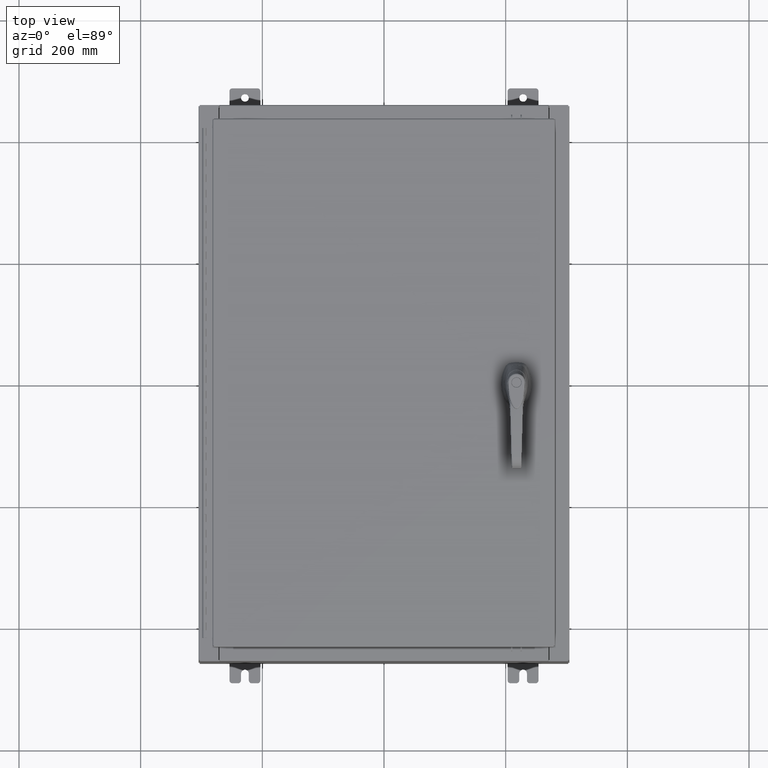
[diagram: clean part render]
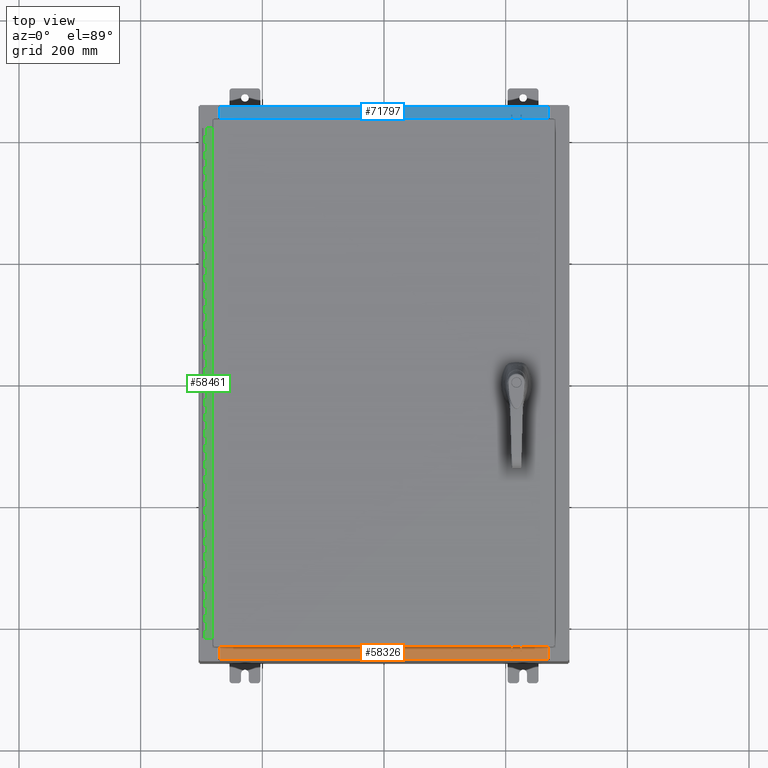
[diagram: same view with three faces highlighted in distinct colors, each labeled with its STEP entity id]
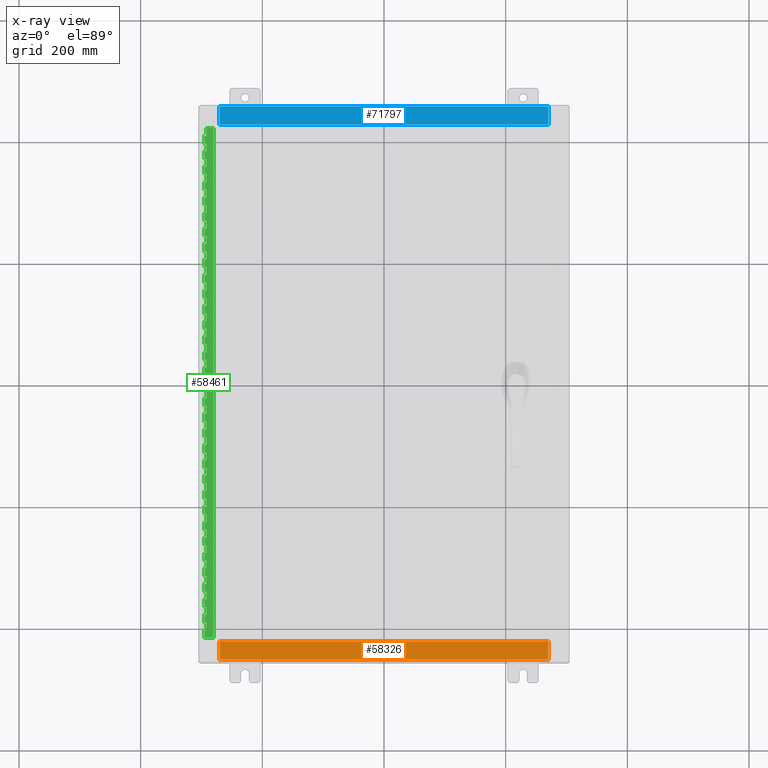
[diagram: x-ray of the same camera — body ghosted, the three highlighted faces saturated]
A machine part, top view with three faces highlighted in distinct colors.
The next image is the same camera in x-ray (body ghosted, the three faces saturated) — at least one of them is partly hidden behind the body in this view.
Their STEP definitions:

[orange] entity #58326 — the highlighted planar face has unit normal (-0, -0, 1).
#7286 = DIRECTION ( 'NONE',  ( -1.000000000000000000, 0.0000000000000000000, 0.0000000000000000000 ) ) ;
#20416 = ORIENTED_EDGE ( 'NONE', *, *, #40516, .F. ) ;
#32904 = LINE ( 'NONE', #119177, #110947 ) ;
#36172 = VERTEX_POINT ( 'NONE', #52142 ) ;
#39333 = CARTESIAN_POINT ( 'NONE',  ( -10.63720000000000200, -0.07469999999999973900, 5.000000000000000000 ) ) ;
#40516 = EDGE_CURVE ( 'NONE', #41381, #36172, #51838, .T. ) ;
#41381 = VERTEX_POINT ( 'NONE', #69614 ) ;
#43964 = CARTESIAN_POINT ( 'NONE',  ( 10.63720000000000400, -0.08770000000000047200, 5.000000000000000000 ) ) ;
#46567 = DIRECTION ( 'NONE',  ( 0.0000000000000000000, 3.566381192773190000E-015, 1.000000000000000000 ) ) ;
#49036 = VERTEX_POINT ( 'NONE', #92065 ) ;
#51838 = LINE ( 'NONE', #120009, #70957 ) ;
#52142 = CARTESIAN_POINT ( 'NONE',  ( -10.63720000000000200, -1.287299999999999200, 5.000000000000004400 ) ) ;
#53369 = DIRECTION ( 'NONE',  ( -0.0000000000000000000, -1.000000000000000000, 3.566381192773190000E-015 ) ) ;
#53796 = VECTOR ( 'NONE', #95731, 39.37007874015748100 ) ;
#54493 = DIRECTION ( 'NONE',  ( -1.000000000000000000, -5.136404305013091600E-017, 1.831837571187793700E-031 ) ) ;
#57536 = ORIENTED_EDGE ( 'NONE', *, *, #120510, .F. ) ;
#58326 = ADVANCED_FACE ( 'NONE', ( #72120 ), #112008, .T. ) ;
#68366 = ORIENTED_EDGE ( 'NONE', *, *, #82087, .T. ) ;
#69614 = CARTESIAN_POINT ( 'NONE',  ( 10.63720000000000200, -1.287299999999999900, 5.000000000000004400 ) ) ;
#70880 = AXIS2_PLACEMENT_3D ( 'NONE', #102963, #46567, #112437 ) ;
#70957 = VECTOR ( 'NONE', #7286, 39.37007874015748100 ) ;
#72120 = FACE_OUTER_BOUND ( 'NONE', #101637, .T. ) ;
#75078 = LINE ( 'NONE', #110869, #78033 ) ;
#78033 = VECTOR ( 'NONE', #54493, 39.37007874015748100 ) ;
#82087 = EDGE_CURVE ( 'NONE', #118611, #49036, #75078, .T. ) ;
#92065 = CARTESIAN_POINT ( 'NONE',  ( -10.63720000000000200, -0.08770000000000081900, 5.000000000000000000 ) ) ;
#95731 = DIRECTION ( 'NONE',  ( -0.0000000000000000000, 1.000000000000000000, -3.566381192773190000E-015 ) ) ;
#100231 = EDGE_CURVE ( 'NONE', #118611, #41381, #32904, .T. ) ;
#101637 = EDGE_LOOP ( 'NONE', ( #57536, #20416, #104660, #68366 ) ) ;
#102963 = CARTESIAN_POINT ( 'NONE',  ( 0.0000000000000000000, 1.782631094477737600E-014, 5.000000000000000000 ) ) ;
#103856 = LINE ( 'NONE', #39333, #53796 ) ;
#104660 = ORIENTED_EDGE ( 'NONE', *, *, #100231, .F. ) ;
#110869 = CARTESIAN_POINT ( 'NONE',  ( 4.504626575497439200E-018, -0.08770000000000081900, 5.000000000000000000 ) ) ;
#110947 = VECTOR ( 'NONE', #53369, 39.37007874015748100 ) ;
#112008 = PLANE ( 'NONE',  #70880 ) ;
#112437 = DIRECTION ( 'NONE',  ( 0.0000000000000000000, -1.000000000000000000, 3.566381192773190000E-015 ) ) ;
#118611 = VERTEX_POINT ( 'NONE', #43964 ) ;
#119177 = CARTESIAN_POINT ( 'NONE',  ( 10.63720000000000200, -1.300299999999999800, 5.000000000000004400 ) ) ;
#120009 = CARTESIAN_POINT ( 'NONE',  ( 10.63720000000000400, -1.287299999999999900, 5.000000000000003600 ) ) ;
#120510 = EDGE_CURVE ( 'NONE', #36172, #49036, #103856, .T. ) ;

[blue] entity #71797 — the highlighted planar face has unit normal (0, 0, 1).
#4170 = CARTESIAN_POINT ( 'NONE',  ( 0.0000000000000000000, 1.782631094477737600E-014, 5.000000000000000000 ) ) ;
#5501 = CARTESIAN_POINT ( 'NONE',  ( 10.63720000000000400, -0.08770000000000047200, 5.000000000000000000 ) ) ;
#7796 = CARTESIAN_POINT ( 'NONE',  ( 10.63720000000000200, -1.287299999999999900, 5.000000000000004400 ) ) ;
#10201 = AXIS2_PLACEMENT_3D ( 'NONE', #4170, #79405, #23111 ) ;
#12640 = CARTESIAN_POINT ( 'NONE',  ( -10.63720000000000200, -0.08770000000000081900, 5.000000000000000000 ) ) ;
#17048 = EDGE_CURVE ( 'NONE', #79947, #94199, #109525, .T. ) ;
#23111 = DIRECTION ( 'NONE',  ( 0.0000000000000000000, -1.000000000000000000, 3.566381192773190000E-015 ) ) ;
#26282 = DIRECTION ( 'NONE',  ( -0.0000000000000000000, -1.000000000000000000, 3.566381192773190000E-015 ) ) ;
#28845 = VERTEX_POINT ( 'NONE', #7796 ) ;
#30438 = VECTOR ( 'NONE', #33712, 39.37007874015748100 ) ;
#31646 = EDGE_LOOP ( 'NONE', ( #85537, #35741, #116526, #93252 ) ) ;
#33712 = DIRECTION ( 'NONE',  ( -1.000000000000000000, 0.0000000000000000000, 0.0000000000000000000 ) ) ;
#35713 = CARTESIAN_POINT ( 'NONE',  ( 10.63720000000000200, -1.300299999999999800, 5.000000000000004400 ) ) ;
#35741 = ORIENTED_EDGE ( 'NONE', *, *, #119262, .F. ) ;
#36286 = LINE ( 'NONE', #52623, #30438 ) ;
#40784 = VECTOR ( 'NONE', #26282, 39.37007874015748100 ) ;
#44192 = DIRECTION ( 'NONE',  ( -0.0000000000000000000, 1.000000000000000000, -3.566381192773190000E-015 ) ) ;
#52623 = CARTESIAN_POINT ( 'NONE',  ( 10.63720000000000400, -1.287299999999999900, 5.000000000000003600 ) ) ;
#60482 = PLANE ( 'NONE',  #10201 ) ;
#65306 = VECTOR ( 'NONE', #44192, 39.37007874015748100 ) ;
#67177 = CARTESIAN_POINT ( 'NONE',  ( 4.504626575497439200E-018, -0.08770000000000081900, 5.000000000000000000 ) ) ;
#71797 = ADVANCED_FACE ( 'NONE', ( #93783 ), #60482, .T. ) ;
#78859 = VERTEX_POINT ( 'NONE', #5501 ) ;
#79405 = DIRECTION ( 'NONE',  ( 0.0000000000000000000, 3.566381192773190000E-015, 1.000000000000000000 ) ) ;
#79947 = VERTEX_POINT ( 'NONE', #101553 ) ;
#80919 = EDGE_CURVE ( 'NONE', #78859, #94199, #95929, .T. ) ;
#85537 = ORIENTED_EDGE ( 'NONE', *, *, #17048, .F. ) ;
#86524 = DIRECTION ( 'NONE',  ( -1.000000000000000000, -5.136404305013091600E-017, 1.831837571187793700E-031 ) ) ;
#93252 = ORIENTED_EDGE ( 'NONE', *, *, #80919, .T. ) ;
#93783 = FACE_OUTER_BOUND ( 'NONE', #31646, .T. ) ;
#94199 = VERTEX_POINT ( 'NONE', #12640 ) ;
#95929 = LINE ( 'NONE', #67177, #120922 ) ;
#96774 = LINE ( 'NONE', #35713, #40784 ) ;
#100602 = CARTESIAN_POINT ( 'NONE',  ( -10.63720000000000200, -0.07469999999999973900, 5.000000000000000000 ) ) ;
#101553 = CARTESIAN_POINT ( 'NONE',  ( -10.63720000000000200, -1.287299999999999200, 5.000000000000004400 ) ) ;
#109525 = LINE ( 'NONE', #100602, #65306 ) ;
#116526 = ORIENTED_EDGE ( 'NONE', *, *, #118650, .F. ) ;
#118650 = EDGE_CURVE ( 'NONE', #78859, #28845, #96774, .T. ) ;
#119262 = EDGE_CURVE ( 'NONE', #28845, #79947, #36286, .T. ) ;
#120922 = VECTOR ( 'NONE', #86524, 39.37007874015748100 ) ;

[green] entity #58461 — the highlighted planar face has unit normal (-0, -0, 1).
#2 = LINE ( 'NONE', #9928, #25065 ) ;
#18 = LINE ( 'NONE', #72887, #75050 ) ;
#54 = CARTESIAN_POINT ( 'NONE',  ( -0.6869999999999973900, 0.8004999999999995500, -31.00000000000000000 ) ) ;
#58 = CARTESIAN_POINT ( 'NONE',  ( -0.6869999999999978300, 0.6754999999999996600, -23.50000000000000000 ) ) ;
#140 = EDGE_CURVE ( 'NONE', #28473, #78531, #102051, .T. ) ;
#186 = LINE ( 'NONE', #73384, #75227 ) ;
#348 = VECTOR ( 'NONE', #79861, 39.37007874015748100 ) ;
#392 = EDGE_CURVE ( 'NONE', #38241, #50695, #62213, .T. ) ;
#539 = LINE ( 'NONE', #86706, #94758 ) ;
#715 = EDGE_CURVE ( 'NONE', #49790, #88327, #91664, .T. ) ;
#888 = ORIENTED_EDGE ( 'NONE', *, *, #55232, .F. ) ;
#909 = PLANE ( 'NONE',  #108777 ) ;
#1136 = VECTOR ( 'NONE', #70849, 39.37007874015748100 ) ;
#1247 = CARTESIAN_POINT ( 'NONE',  ( -0.6869999999999978300, 0.6754999999999996600, -33.00000000000000000 ) ) ;
#1430 = LINE ( 'NONE', #56707, #23524 ) ;
#1486 = DIRECTION ( 'NONE',  ( 3.389037039080723100E-015, 1.000000000000000000, -0.0000000000000000000 ) ) ;
#1493 = EDGE_CURVE ( 'NONE', #50695, #53323, #91548, .T. ) ;
#1773 = EDGE_CURVE ( 'NONE', #81698, #23326, #76749, .T. ) ;
#1859 = ORIENTED_EDGE ( 'NONE', *, *, #11606, .F. ) ;
#1913 = CARTESIAN_POINT ( 'NONE',  ( -0.6869999999999978300, 0.6754999999999996600, -33.00000000000000000 ) ) ;
#2049 = DIRECTION ( 'NONE',  ( 0.0000000000000000000, -0.0000000000000000000, -1.000000000000000000 ) ) ;
#2097 = CARTESIAN_POINT ( 'NONE',  ( -0.6869999999999978300, 0.6754999999999996600, -26.00000000000000000 ) ) ;
#2241 = ORIENTED_EDGE ( 'NONE', *, *, #101674, .F. ) ;
#2328 = LINE ( 'NONE', #106799, #24433 ) ;
#2333 = EDGE_CURVE ( 'NONE', #64901, #99304, #13417, .T. ) ;
#2750 = VERTEX_POINT ( 'NONE', #18816 ) ;
#2755 = EDGE_CURVE ( 'NONE', #23604, #41456, #107774, .T. ) ;
#2821 = CARTESIAN_POINT ( 'NONE',  ( -0.6869999999999973900, 0.8004999999999995500, -1.499999999999999800 ) ) ;
#2825 = CARTESIAN_POINT ( 'NONE',  ( -0.6869999999999982800, 0.5504999999999997700, -10.50000000000000000 ) ) ;
#2853 = VECTOR ( 'NONE', #40532, 39.37007874015748100 ) ;
#2869 = VECTOR ( 'NONE', #59464, 39.37007874015748100 ) ;
#2878 = EDGE_CURVE ( 'NONE', #74722, #58809, #61770, .T. ) ;
#2980 = LINE ( 'NONE', #72492, #72129 ) ;
#3064 = LINE ( 'NONE', #5303, #50145 ) ;
#3225 = DIRECTION ( 'NONE',  ( -3.389037039080723100E-015, -1.000000000000000000, 0.0000000000000000000 ) ) ;
#3408 = EDGE_CURVE ( 'NONE', #80131, #88563, #16171, .T. ) ;
#3413 = VERTEX_POINT ( 'NONE', #79157 ) ;
#3688 = VERTEX_POINT ( 'NONE', #102938 ) ;
#3805 = VERTEX_POINT ( 'NONE', #83862 ) ;
#3844 = VERTEX_POINT ( 'NONE', #41021 ) ;
#4048 = CARTESIAN_POINT ( 'NONE',  ( -0.6869999999999973900, 0.8004999999999995500, -8.500000000000000000 ) ) ;
#4394 = VECTOR ( 'NONE', #10327, 39.37007874015748100 ) ;
#4536 = LINE ( 'NONE', #42804, #26611 ) ;
#4651 = VECTOR ( 'NONE', #55979, 39.37007874015748100 ) ;
#4677 = VECTOR ( 'NONE', #62490, 39.37007874015748100 ) ;
#4909 = CARTESIAN_POINT ( 'NONE',  ( -0.6869999999999973900, 0.8004999999999995500, -31.50000000000000400 ) ) ;
#5020 = ORIENTED_EDGE ( 'NONE', *, *, #66645, .F. ) ;
#5076 = ORIENTED_EDGE ( 'NONE', *, *, #89240, .F. ) ;
#5200 = LINE ( 'NONE', #9653, #102325 ) ;
#5302 = DIRECTION ( 'NONE',  ( 3.389037039080723100E-015, 1.000000000000000000, -0.0000000000000000000 ) ) ;
#5303 = CARTESIAN_POINT ( 'NONE',  ( -0.6869999999999978300, 0.6754999999999996600, -33.00000000000000000 ) ) ;
#5535 = VECTOR ( 'NONE', #43813, 39.37007874015748100 ) ;
#5558 = EDGE_CURVE ( 'NONE', #27756, #118973, #83543, .T. ) ;
#5687 = CARTESIAN_POINT ( 'NONE',  ( -0.6869999999999982800, 0.5504999999999997700, -11.50000000000000000 ) ) ;
#6020 = ORIENTED_EDGE ( 'NONE', *, *, #1493, .F. ) ;
#6074 = DIRECTION ( 'NONE',  ( 3.389037039080723100E-015, 1.000000000000000000, -0.0000000000000000000 ) ) ;
#6150 = CARTESIAN_POINT ( 'NONE',  ( -0.6869999999999978300, 0.6754999999999996600, -6.000000000000000900 ) ) ;
#6384 = VERTEX_POINT ( 'NONE', #109002 ) ;
#6706 = VECTOR ( 'NONE', #32067, 39.37007874015748100 ) ;
#6794 = LINE ( 'NONE', #42195, #25932 ) ;
#6814 = ORIENTED_EDGE ( 'NONE', *, *, #91053, .F. ) ;
#6878 = VERTEX_POINT ( 'NONE', #52078 ) ;
#7074 = CARTESIAN_POINT ( 'NONE',  ( -0.6869999999999982800, 0.5504999999999997700, -8.000000000000000000 ) ) ;
#7103 = CARTESIAN_POINT ( 'NONE',  ( -0.6869999999999973900, 0.8004999999999995500, -10.50000000000000000 ) ) ;
#7107 = DIRECTION ( 'NONE',  ( -3.389037039080723100E-015, -1.000000000000000000, 0.0000000000000000000 ) ) ;
#7133 = VECTOR ( 'NONE', #107826, 39.37007874015748100 ) ;
#7312 = DIRECTION ( 'NONE',  ( 0.0000000000000000000, 0.0000000000000000000, 1.000000000000000000 ) ) ;
#7476 = CARTESIAN_POINT ( 'NONE',  ( -0.6869999999999978300, 0.6754999999999996600, -28.00000000000000000 ) ) ;
#7512 = LINE ( 'NONE', #91747, #76645 ) ;
#7924 = ORIENTED_EDGE ( 'NONE', *, *, #42616, .T. ) ;
#8059 = ORIENTED_EDGE ( 'NONE', *, *, #78413, .T. ) ;
#8128 = LINE ( 'NONE', #97870, #27282 ) ;
#8384 = VERTEX_POINT ( 'NONE', #8653 ) ;
#8653 = CARTESIAN_POINT ( 'NONE',  ( -0.6869999999999978300, 0.6754999999999996600, -2.500000000000000000 ) ) ;
#8662 = ORIENTED_EDGE ( 'NONE', *, *, #54686, .T. ) ;
#8768 = VECTOR ( 'NONE', #39292, 39.37007874015748100 ) ;
#8953 = ORIENTED_EDGE ( 'NONE', *, *, #59416, .F. ) ;
#9100 = CARTESIAN_POINT ( 'NONE',  ( -0.6869999999999982800, 0.5504999999999997700, -21.50000000000000400 ) ) ;
#9137 = CARTESIAN_POINT ( 'NONE',  ( -0.6869999999999978300, 0.6754999999999996600, -4.500000000000000000 ) ) ;
#9168 = ORIENTED_EDGE ( 'NONE', *, *, #61273, .F. ) ;
#9210 = LINE ( 'NONE', #69595, #56295 ) ;
#9653 = CARTESIAN_POINT ( 'NONE',  ( -0.6869999999999973900, 0.8004999999999995500, -32.00000000000000000 ) ) ;
#9764 = CARTESIAN_POINT ( 'NONE',  ( -0.6869999999999978300, 0.6754999999999996600, -5.500000000000000000 ) ) ;
#9928 = CARTESIAN_POINT ( 'NONE',  ( -0.6869999999999973900, 0.8004999999999995500, -1.000000000000000000 ) ) ;
#9930 = VERTEX_POINT ( 'NONE', #85020 ) ;
#10031 = CARTESIAN_POINT ( 'NONE',  ( -0.6869999999999982800, 0.5504999999999997700, -7.000000000000000000 ) ) ;
#10074 = LINE ( 'NONE', #79774, #7133 ) ;
#10142 = EDGE_CURVE ( 'NONE', #78531, #106286, #111104, .T. ) ;
#10176 = CARTESIAN_POINT ( 'NONE',  ( -0.6869999999999982800, 0.5504999999999997700, -16.00000000000000000 ) ) ;
#10188 = LINE ( 'NONE', #55793, #82292 ) ;
#10252 = VECTOR ( 'NONE', #27022, 39.37007874015748100 ) ;
#10289 = CARTESIAN_POINT ( 'NONE',  ( -0.6869999999999982800, 0.5504999999999997700, -22.50000000000000000 ) ) ;
#10327 = DIRECTION ( 'NONE',  ( 0.0000000000000000000, -0.0000000000000000000, -1.000000000000000000 ) ) ;
#10337 = CARTESIAN_POINT ( 'NONE',  ( -0.6869999999999982800, 0.5504999999999997700, -31.50000000000000400 ) ) ;
#10358 = DIRECTION ( 'NONE',  ( 0.0000000000000000000, 0.0000000000000000000, 1.000000000000000000 ) ) ;
#10528 = CARTESIAN_POINT ( 'NONE',  ( -0.6869999999999973900, 0.8004999999999995500, -2.500000000000000000 ) ) ;
#10530 = EDGE_CURVE ( 'NONE', #102138, #14208, #87488, .T. ) ;
#10545 = VERTEX_POINT ( 'NONE', #32408 ) ;
#10827 = CARTESIAN_POINT ( 'NONE',  ( -0.6869999999999973900, 0.8004999999999995500, -22.50000000000000000 ) ) ;
#11007 = LINE ( 'NONE', #79134, #36009 ) ;
#11025 = ORIENTED_EDGE ( 'NONE', *, *, #11659, .T. ) ;
#11160 = LINE ( 'NONE', #56109, #114197 ) ;
#11410 = VECTOR ( 'NONE', #11542, 39.37007874015748100 ) ;
#11456 = DIRECTION ( 'NONE',  ( 0.0000000000000000000, 0.0000000000000000000, 1.000000000000000000 ) ) ;
#11508 = ORIENTED_EDGE ( 'NONE', *, *, #118048, .T. ) ;
#11518 = DIRECTION ( 'NONE',  ( -3.389037039080723100E-015, -1.000000000000000000, 0.0000000000000000000 ) ) ;
#11542 = DIRECTION ( 'NONE',  ( 0.0000000000000000000, -0.0000000000000000000, -1.000000000000000000 ) ) ;
#11606 = EDGE_CURVE ( 'NONE', #56281, #85684, #13744, .T. ) ;
#11659 = EDGE_CURVE ( 'NONE', #18814, #47790, #60764, .T. ) ;
#11664 = CARTESIAN_POINT ( 'NONE',  ( -0.6869999999999973900, 0.8004999999999995500, -17.50000000000000000 ) ) ;
#11677 = VERTEX_POINT ( 'NONE', #80260 ) ;
#11683 = DIRECTION ( 'NONE',  ( 3.369016658928398200E-015, 1.000000000000000000, 0.0000000000000000000 ) ) ;
#11741 = ORIENTED_EDGE ( 'NONE', *, *, #12670, .F. ) ;
#11790 = DIRECTION ( 'NONE',  ( 0.0000000000000000000, 0.0000000000000000000, 1.000000000000000000 ) ) ;
#12032 = CARTESIAN_POINT ( 'NONE',  ( -0.6869999999999978300, 0.6754999999999996600, -33.00000000000000000 ) ) ;
#12288 = CARTESIAN_POINT ( 'NONE',  ( -0.6869999999999973900, 0.8004999999999995500, -17.99999999999999600 ) ) ;
#12301 = VERTEX_POINT ( 'NONE', #120372 ) ;
#12478 = CARTESIAN_POINT ( 'NONE',  ( -0.6869999999999973900, 0.8004999999999995500, -27.50000000000000000 ) ) ;
#12643 = VERTEX_POINT ( 'NONE', #23250 ) ;
#12670 = EDGE_CURVE ( 'NONE', #9930, #80740, #101903, .T. ) ;
#12758 = CARTESIAN_POINT ( 'NONE',  ( -0.6869999999999982800, 0.5504999999999997700, -6.499999999999999100 ) ) ;
#12825 = VERTEX_POINT ( 'NONE', #55844 ) ;
#13014 = VERTEX_POINT ( 'NONE', #27373 ) ;
#13028 = DIRECTION ( 'NONE',  ( 3.389037039080723100E-015, 1.000000000000000000, -0.0000000000000000000 ) ) ;
#13179 = CARTESIAN_POINT ( 'NONE',  ( -0.6869999999999973900, 0.8004999999999995500, -11.99999999999999800 ) ) ;
#13244 = EDGE_CURVE ( 'NONE', #112836, #116166, #19424, .T. ) ;
#13389 = CARTESIAN_POINT ( 'NONE',  ( -0.6869999999999973900, 0.8004999999999995500, -12.49999999999999800 ) ) ;
#13417 = LINE ( 'NONE', #18793, #113501 ) ;
#13488 = CARTESIAN_POINT ( 'NONE',  ( -0.6870000000000022800, -0.6245000000000003900, 0.0000000000000000000 ) ) ;
#13744 = LINE ( 'NONE', #118126, #63725 ) ;
#13805 = ORIENTED_EDGE ( 'NONE', *, *, #70404, .T. ) ;
#13867 = DIRECTION ( 'NONE',  ( -3.389037039080723100E-015, -1.000000000000000000, 0.0000000000000000000 ) ) ;
#13881 = CARTESIAN_POINT ( 'NONE',  ( -0.6869999999999982800, 0.5504999999999997700, -17.00000000000000000 ) ) ;
#14208 = VERTEX_POINT ( 'NONE', #44740 ) ;
#14216 = EDGE_CURVE ( 'NONE', #23582, #94498, #60415, .T. ) ;
#14328 = CARTESIAN_POINT ( 'NONE',  ( -0.6869999999999982800, 0.5504999999999997700, -29.50000000000000000 ) ) ;
#14593 = EDGE_CURVE ( 'NONE', #29726, #117679, #42737, .T. ) ;
#14789 = VECTOR ( 'NONE', #13028, 39.37007874015748100 ) ;
#15022 = VECTOR ( 'NONE', #50109, 39.37007874015748100 ) ;
#15228 = DIRECTION ( 'NONE',  ( 3.389037039080723100E-015, 1.000000000000000000, -0.0000000000000000000 ) ) ;
#15296 = LINE ( 'NONE', #69918, #112428 ) ;
#15598 = ORIENTED_EDGE ( 'NONE', *, *, #13244, .F. ) ;
#15739 = ORIENTED_EDGE ( 'NONE', *, *, #54283, .F. ) ;
#15942 = CARTESIAN_POINT ( 'NONE',  ( -0.6869999999999982800, 0.5504999999999997700, -0.5000000000000000000 ) ) ;
#16112 = ORIENTED_EDGE ( 'NONE', *, *, #117300, .T. ) ;
#16136 = CARTESIAN_POINT ( 'NONE',  ( -0.6869999999999973900, 0.8004999999999995500, -12.99999999999999800 ) ) ;
#16171 = LINE ( 'NONE', #10827, #10252 ) ;
#16177 = DIRECTION ( 'NONE',  ( 0.0000000000000000000, 0.0000000000000000000, 1.000000000000000000 ) ) ;
#16348 = LINE ( 'NONE', #12032, #66332 ) ;
#16359 = ORIENTED_EDGE ( 'NONE', *, *, #91992, .F. ) ;
#16404 = VERTEX_POINT ( 'NONE', #6150 ) ;
#16455 = VECTOR ( 'NONE', #76632, 39.37007874015748100 ) ;
#16561 = DIRECTION ( 'NONE',  ( 0.0000000000000000000, -0.0000000000000000000, -1.000000000000000000 ) ) ;
#16592 = ORIENTED_EDGE ( 'NONE', *, *, #74564, .F. ) ;
#16606 = VECTOR ( 'NONE', #16561, 39.37007874015748100 ) ;
#16619 = VECTOR ( 'NONE', #37362, 39.37007874015748100 ) ;
#16769 = ORIENTED_EDGE ( 'NONE', *, *, #70917, .F. ) ;
#16794 = ORIENTED_EDGE ( 'NONE', *, *, #73728, .F. ) ;
#16884 = LINE ( 'NONE', #121777, #111056 ) ;
#16938 = EDGE_LOOP ( 'NONE', ( #102819, #86567, #8953, #47539, #118511, #73772, #23124, #54338, #13805, #103682, #25202, #42040, #38653, #29290, #52564, #64562, #85690, #112498, #103586, #39143, #21367, #101615, #47572, #119256, #11025, #95935, #45313, #115753, #11508, #48731, #47526, #89978, #104014, #62353, #91011, #16592, #16112, #115625, #64814, #116996, #97950, #18740, #58847, #113666, #25430, #36221, #119656, #15739, #82634, #76257, #53650, #46359, #7924, #15598, #6814, #19034, #115661, #102139, #2241, #107777, #37528, #95776, #42282, #94742, #112505, #46012, #97865, #53775, #88051, #56619, #60051, #39081, #98772, #52843, #16359, #11741, #99134, #78451, #87124, #16794, #66852, #85445, #16769, #29304, #8059, #17679, #23496, #56569, #8662, #54979, #49092, #28108, #104978, #75947, #23512, #1859, #120723, #5020, #102728, #95496, #119724, #113031, #9168, #18099, #107488, #84139, #89081, #39500, #115057, #97398, #43104, #40733, #81613, #59394, #81970, #88048, #109227, #88727, #28092, #5076, #105693, #6020, #76465, #112481, #75895, #99448, #28400, #888, #50990, #38505, #107780, #19150, #50717, #77514 ) ) ;
#17020 = CARTESIAN_POINT ( 'NONE',  ( -0.6869999999999978300, 0.6754999999999996600, -33.00000000000000000 ) ) ;
#17111 = DIRECTION ( 'NONE',  ( 0.0000000000000000000, 0.0000000000000000000, 1.000000000000000000 ) ) ;
#17233 = LINE ( 'NONE', #94844, #114340 ) ;
#17315 = EDGE_CURVE ( 'NONE', #59618, #27756, #539, .T. ) ;
#17421 = CARTESIAN_POINT ( 'NONE',  ( -0.6869999999999978300, 0.6754999999999996600, -33.00000000000000000 ) ) ;
#17645 = VECTOR ( 'NONE', #56201, 39.37007874015748100 ) ;
#17679 = ORIENTED_EDGE ( 'NONE', *, *, #93798, .F. ) ;
#17744 = VECTOR ( 'NONE', #67703, 39.37007874015748100 ) ;
#17746 = CARTESIAN_POINT ( 'NONE',  ( -0.6869999999999973900, 0.8004999999999995500, -6.499999999999999100 ) ) ;
#17790 = VERTEX_POINT ( 'NONE', #24081 ) ;
#17809 = CARTESIAN_POINT ( 'NONE',  ( -0.6869999999999973900, 0.8004999999999995500, -4.500000000000000000 ) ) ;
#17831 = VERTEX_POINT ( 'NONE', #52421 ) ;
#17917 = VECTOR ( 'NONE', #63841, 39.37007874015748100 ) ;
#17974 = LINE ( 'NONE', #2821, #15022 ) ;
#17982 = EDGE_CURVE ( 'NONE', #12643, #61595, #84340, .T. ) ;
#18099 = ORIENTED_EDGE ( 'NONE', *, *, #38572, .F. ) ;
#18395 = DIRECTION ( 'NONE',  ( 3.389037039080723100E-015, 1.000000000000000000, -0.0000000000000000000 ) ) ;
#18567 = CARTESIAN_POINT ( 'NONE',  ( -0.6869999999999973900, 0.8004999999999995500, -5.500000000000000000 ) ) ;
#18633 = DIRECTION ( 'NONE',  ( -3.389037039080723100E-015, -1.000000000000000000, 0.0000000000000000000 ) ) ;
#18716 = CARTESIAN_POINT ( 'NONE',  ( -0.6869999999999978300, 0.6754999999999996600, -4.000000000000000000 ) ) ;
#18740 = ORIENTED_EDGE ( 'NONE', *, *, #68200, .F. ) ;
#18793 = CARTESIAN_POINT ( 'NONE',  ( -0.6869999999999973900, 0.8004999999999995500, -17.00000000000000000 ) ) ;
#18814 = VERTEX_POINT ( 'NONE', #70223 ) ;
#18816 = CARTESIAN_POINT ( 'NONE',  ( -0.6869999999999978300, 0.6754999999999996600, -2.000000000000000000 ) ) ;
#19027 = CARTESIAN_POINT ( 'NONE',  ( -0.6869999999999973900, 0.8004999999999995500, -25.50000000000000400 ) ) ;
#19034 = ORIENTED_EDGE ( 'NONE', *, *, #54876, .F. ) ;
#19150 = ORIENTED_EDGE ( 'NONE', *, *, #34508, .F. ) ;
#19424 = LINE ( 'NONE', #67175, #16455 ) ;
#19454 = DIRECTION ( 'NONE',  ( -3.389037039080723100E-015, -1.000000000000000000, 0.0000000000000000000 ) ) ;
#19525 = DIRECTION ( 'NONE',  ( -3.389037039080723100E-015, -1.000000000000000000, 0.0000000000000000000 ) ) ;
#19875 = VERTEX_POINT ( 'NONE', #61648 ) ;
#20131 = DIRECTION ( 'NONE',  ( -3.389037039080723100E-015, -1.000000000000000000, 0.0000000000000000000 ) ) ;
#20367 = CARTESIAN_POINT ( 'NONE',  ( -0.6869999999999978300, 0.6754999999999996600, -8.500000000000000000 ) ) ;
#20471 = CARTESIAN_POINT ( 'NONE',  ( -0.6869999999999978300, 0.6754999999999996600, -21.50000000000000400 ) ) ;
#20563 = CARTESIAN_POINT ( 'NONE',  ( -0.6869999999999978300, 0.6754999999999996600, -33.00000000000000000 ) ) ;
#20757 = VECTOR ( 'NONE', #38690, 39.37007874015748100 ) ;
#20947 = LINE ( 'NONE', #59154, #90090 ) ;
#21013 = CARTESIAN_POINT ( 'NONE',  ( -0.6869999999999982800, 0.5504999999999997700, -14.49999999999999800 ) ) ;
#21213 = VERTEX_POINT ( 'NONE', #73434 ) ;
#21367 = ORIENTED_EDGE ( 'NONE', *, *, #48873, .T. ) ;
#21444 = CARTESIAN_POINT ( 'NONE',  ( -0.6869999999999978300, 0.6754999999999996600, -14.99999999999999800 ) ) ;
#21788 = LINE ( 'NONE', #4909, #118912 ) ;
#21816 = EDGE_CURVE ( 'NONE', #61595, #61879, #88252, .T. ) ;
#21914 = VERTEX_POINT ( 'NONE', #114399 ) ;
#21935 = DIRECTION ( 'NONE',  ( -3.389037039080723100E-015, -1.000000000000000000, 0.0000000000000000000 ) ) ;
#22034 = DIRECTION ( 'NONE',  ( 3.389037039080723100E-015, 1.000000000000000000, -0.0000000000000000000 ) ) ;
#22132 = FACE_OUTER_BOUND ( 'NONE', #16938, .T. ) ;
#22273 = LINE ( 'NONE', #19027, #69328 ) ;
#22372 = VERTEX_POINT ( 'NONE', #90373 ) ;
#22445 = CARTESIAN_POINT ( 'NONE',  ( -0.6869999999999982800, 0.5504999999999997700, -32.50000000000000000 ) ) ;
#22622 = CARTESIAN_POINT ( 'NONE',  ( -0.6869999999999973900, 0.8004999999999995500, -13.50000000000000000 ) ) ;
#22626 = VERTEX_POINT ( 'NONE', #57347 ) ;
#22906 = VECTOR ( 'NONE', #92659, 39.37007874015748100 ) ;
#23013 = CARTESIAN_POINT ( 'NONE',  ( -0.6869999999999978300, 0.6754999999999996600, -29.50000000000000000 ) ) ;
#23124 = ORIENTED_EDGE ( 'NONE', *, *, #94744, .F. ) ;
#23172 = CARTESIAN_POINT ( 'NONE',  ( -0.6869999999999982800, 0.5504999999999997700, -11.50000000000000000 ) ) ;
#23250 = CARTESIAN_POINT ( 'NONE',  ( -0.6869999999999982800, 0.5504999999999997700, -30.50000000000000400 ) ) ;
#23326 = VERTEX_POINT ( 'NONE', #90488 ) ;
#23332 = VECTOR ( 'NONE', #53712, 39.37007874015748100 ) ;
#23496 = ORIENTED_EDGE ( 'NONE', *, *, #56314, .F. ) ;
#23512 = ORIENTED_EDGE ( 'NONE', *, *, #110245, .F. ) ;
#23524 = VECTOR ( 'NONE', #66543, 39.37007874015748100 ) ;
#23582 = VERTEX_POINT ( 'NONE', #9764 ) ;
#23604 = VERTEX_POINT ( 'NONE', #10176 ) ;
#24047 = LINE ( 'NONE', #27642, #71098 ) ;
#24081 = CARTESIAN_POINT ( 'NONE',  ( -0.6869999999999982800, 0.5504999999999997700, -19.50000000000000000 ) ) ;
#24138 = VECTOR ( 'NONE', #97116, 39.37007874015748100 ) ;
#24255 = LINE ( 'NONE', #20563, #121353 ) ;
#24339 = VECTOR ( 'NONE', #105579, 39.37007874015748100 ) ;
#24433 = VECTOR ( 'NONE', #41297, 39.37007874015748100 ) ;
#24580 = CARTESIAN_POINT ( 'NONE',  ( -0.6869999999999982800, 0.5504999999999997700, -13.50000000000000000 ) ) ;
#24656 = CARTESIAN_POINT ( 'NONE',  ( -0.6869999999999978300, 0.6754999999999996600, -29.99999999999999600 ) ) ;
#24751 = CARTESIAN_POINT ( 'NONE',  ( -0.6869999999999982800, 0.5504999999999997700, -9.500000000000000000 ) ) ;
#24862 = EDGE_CURVE ( 'NONE', #22626, #118973, #17233, .T. ) ;
#24900 = CARTESIAN_POINT ( 'NONE',  ( -0.6869999999999973900, 0.8004999999999995500, -4.000000000000000000 ) ) ;
#24932 = LINE ( 'NONE', #72622, #74899 ) ;
#25065 = VECTOR ( 'NONE', #66257, 39.37007874015748100 ) ;
#25202 = ORIENTED_EDGE ( 'NONE', *, *, #17982, .F. ) ;
#25430 = ORIENTED_EDGE ( 'NONE', *, *, #56685, .T. ) ;
#25546 = CARTESIAN_POINT ( 'NONE',  ( -0.6869999999999982800, 0.5504999999999997700, -20.50000000000000400 ) ) ;
#25718 = DIRECTION ( 'NONE',  ( 3.389037039080723100E-015, 1.000000000000000000, -0.0000000000000000000 ) ) ;
#25932 = VECTOR ( 'NONE', #89111, 39.37007874015748100 ) ;
#26018 = CARTESIAN_POINT ( 'NONE',  ( -0.6869999999999982800, 0.5504999999999997700, -23.50000000000000000 ) ) ;
#26108 = EDGE_CURVE ( 'NONE', #81333, #95048, #2328, .T. ) ;
#26502 = EDGE_CURVE ( 'NONE', #93291, #75515, #53809, .T. ) ;
#26611 = VECTOR ( 'NONE', #118112, 39.37007874015748100 ) ;
#26685 = CARTESIAN_POINT ( 'NONE',  ( -0.6869999999999978300, 0.6754999999999996600, -33.00000000000000000 ) ) ;
#26913 = EDGE_CURVE ( 'NONE', #108294, #17831, #8128, .T. ) ;
#26923 = EDGE_CURVE ( 'NONE', #74722, #97857, #99384, .T. ) ;
#27022 = DIRECTION ( 'NONE',  ( -3.389037039080723100E-015, -1.000000000000000000, 0.0000000000000000000 ) ) ;
#27185 = VERTEX_POINT ( 'NONE', #27817 ) ;
#27282 = VECTOR ( 'NONE', #88362, 39.37007874015748100 ) ;
#27373 = CARTESIAN_POINT ( 'NONE',  ( -0.6869999999999982800, 0.5504999999999997700, -23.99999999999999600 ) ) ;
#27623 = VERTEX_POINT ( 'NONE', #92315 ) ;
#27642 = CARTESIAN_POINT ( 'NONE',  ( -0.6869999999999978300, 0.6754999999999996600, -33.00000000000000000 ) ) ;
#27756 = VERTEX_POINT ( 'NONE', #67158 ) ;
#27817 = CARTESIAN_POINT ( 'NONE',  ( -0.6869999999999982800, 0.5504999999999997700, -26.00000000000000000 ) ) ;
#27833 = VECTOR ( 'NONE', #55849, 39.37007874015748100 ) ;
#27865 = DIRECTION ( 'NONE',  ( 3.389037039080723100E-015, 1.000000000000000000, -0.0000000000000000000 ) ) ;
#27953 = CARTESIAN_POINT ( 'NONE',  ( -0.6869999999999973900, 0.8004999999999995500, -11.00000000000000000 ) ) ;
#28092 = ORIENTED_EDGE ( 'NONE', *, *, #118275, .F. ) ;
#28108 = ORIENTED_EDGE ( 'NONE', *, *, #43992, .F. ) ;
#28237 = CARTESIAN_POINT ( 'NONE',  ( -0.6869999999999982800, 0.5504999999999997700, -19.00000000000000000 ) ) ;
#28400 = ORIENTED_EDGE ( 'NONE', *, *, #39162, .F. ) ;
#28473 = VERTEX_POINT ( 'NONE', #2825 ) ;
#28672 = DIRECTION ( 'NONE',  ( 0.0000000000000000000, -0.0000000000000000000, -1.000000000000000000 ) ) ;
#29057 = DIRECTION ( 'NONE',  ( 0.0000000000000000000, 0.0000000000000000000, 1.000000000000000000 ) ) ;
#29127 = LINE ( 'NONE', #80324, #1136 ) ;
#29290 = ORIENTED_EDGE ( 'NONE', *, *, #31285, .F. ) ;
#29300 = DIRECTION ( 'NONE',  ( 3.369016658928398200E-015, 1.000000000000000000, 0.0000000000000000000 ) ) ;
#29304 = ORIENTED_EDGE ( 'NONE', *, *, #47662, .F. ) ;
#29420 = LINE ( 'NONE', #103323, #4394 ) ;
#29520 = CARTESIAN_POINT ( 'NONE',  ( -0.6869999999999982800, 0.5504999999999997700, -18.50000000000000000 ) ) ;
#29544 = VECTOR ( 'NONE', #29057, 39.37007874015748100 ) ;
#29726 = VERTEX_POINT ( 'NONE', #37646 ) ;
#29939 = CARTESIAN_POINT ( 'NONE',  ( -0.6869999999999982800, 0.5504999999999997700, -19.50000000000000000 ) ) ;
#30067 = CARTESIAN_POINT ( 'NONE',  ( -0.6869999999999982800, 0.5504999999999997700, -4.000000000000000000 ) ) ;
#30325 = VECTOR ( 'NONE', #113957, 39.37007874015748100 ) ;
#30430 = DIRECTION ( 'NONE',  ( 0.0000000000000000000, 0.0000000000000000000, 1.000000000000000000 ) ) ;
#30780 = EDGE_CURVE ( 'NONE', #117766, #50544, #7512, .T. ) ;
#30854 = VECTOR ( 'NONE', #95794, 39.37007874015748100 ) ;
#30974 = EDGE_CURVE ( 'NONE', #88327, #80827, #45723, .T. ) ;
#31285 = EDGE_CURVE ( 'NONE', #39842, #42099, #82696, .T. ) ;
#31430 = CARTESIAN_POINT ( 'NONE',  ( -0.6869999999999982800, 0.5504999999999997700, -29.99999999999999600 ) ) ;
#31679 = LINE ( 'NONE', #91125, #56659 ) ;
#31770 = VERTEX_POINT ( 'NONE', #91546 ) ;
#31806 = EDGE_CURVE ( 'NONE', #79723, #121412, #186, .T. ) ;
#31914 = EDGE_CURVE ( 'NONE', #97857, #27623, #116482, .T. ) ;
#32067 = DIRECTION ( 'NONE',  ( -3.389037039080723100E-015, -1.000000000000000000, 0.0000000000000000000 ) ) ;
#32206 = CARTESIAN_POINT ( 'NONE',  ( -0.6869999999999978300, 0.6754999999999996600, -23.00000000000000000 ) ) ;
#32408 = CARTESIAN_POINT ( 'NONE',  ( -0.6869999999999978300, 0.6754999999999996600, -12.99999999999999800 ) ) ;
#32593 = CARTESIAN_POINT ( 'NONE',  ( -0.6869999999999978300, 0.6754999999999996600, -33.00000000000000000 ) ) ;
#32718 = CARTESIAN_POINT ( 'NONE',  ( -0.6869999999999982800, 0.5504999999999997700, -4.500000000000000000 ) ) ;
#32783 = EDGE_CURVE ( 'NONE', #58640, #112919, #72175, .T. ) ;
#32800 = VERTEX_POINT ( 'NONE', #116800 ) ;
#32805 = CARTESIAN_POINT ( 'NONE',  ( -0.6869999999999982800, 0.5504999999999997700, -24.99999999999999600 ) ) ;
#32903 = CARTESIAN_POINT ( 'NONE',  ( -0.6869999999999978300, 0.6754999999999996600, -7.000000000000000000 ) ) ;
#33011 = DIRECTION ( 'NONE',  ( 0.0000000000000000000, 0.0000000000000000000, 1.000000000000000000 ) ) ;
#33242 = CARTESIAN_POINT ( 'NONE',  ( -0.6869999999999982800, 0.5504999999999997700, -12.49999999999999800 ) ) ;
#33246 = DIRECTION ( 'NONE',  ( 0.0000000000000000000, -0.0000000000000000000, -1.000000000000000000 ) ) ;
#33338 = LINE ( 'NONE', #40719, #111364 ) ;
#33526 = DIRECTION ( 'NONE',  ( 3.389037039080723100E-015, 1.000000000000000000, -0.0000000000000000000 ) ) ;
#33621 = VERTEX_POINT ( 'NONE', #44512 ) ;
#33627 = CARTESIAN_POINT ( 'NONE',  ( -0.6869999999999978300, 0.6754999999999996600, -9.500000000000000000 ) ) ;
#33768 = CARTESIAN_POINT ( 'NONE',  ( -0.6869999999999978300, 0.6754999999999996600, -33.00000000000000000 ) ) ;
#33779 = VERTEX_POINT ( 'NONE', #2097 ) ;
#34254 = EDGE_CURVE ( 'NONE', #83566, #108294, #102916, .T. ) ;
#34316 = VECTOR ( 'NONE', #110833, 39.37007874015748100 ) ;
#34508 = EDGE_CURVE ( 'NONE', #22626, #114033, #110230, .T. ) ;
#34857 = VECTOR ( 'NONE', #108934, 39.37007874015748100 ) ;
#35252 = DIRECTION ( 'NONE',  ( -3.389037039080723100E-015, -1.000000000000000000, 0.0000000000000000000 ) ) ;
#35410 = VECTOR ( 'NONE', #7312, 39.37007874015748100 ) ;
#35614 = VERTEX_POINT ( 'NONE', #118067 ) ;
#35769 = VECTOR ( 'NONE', #43240, 39.37007874015748100 ) ;
#36009 = VECTOR ( 'NONE', #107211, 39.37007874015748100 ) ;
#36039 = VERTEX_POINT ( 'NONE', #69842 ) ;
#36106 = DIRECTION ( 'NONE',  ( 0.0000000000000000000, 0.0000000000000000000, 1.000000000000000000 ) ) ;
#36221 = ORIENTED_EDGE ( 'NONE', *, *, #120524, .F. ) ;
#36466 = CARTESIAN_POINT ( 'NONE',  ( -0.6869999999999978300, 0.6754999999999996600, -26.50000000000000400 ) ) ;
#36483 = VECTOR ( 'NONE', #2049, 39.37007874015748100 ) ;
#36608 = CARTESIAN_POINT ( 'NONE',  ( -0.6869999999999982800, 0.5504999999999997700, -27.50000000000000000 ) ) ;
#36620 = EDGE_CURVE ( 'NONE', #99091, #6384, #42215, .T. ) ;
#36766 = CARTESIAN_POINT ( 'NONE',  ( -0.6869999999999982800, 0.5504999999999997700, -8.500000000000000000 ) ) ;
#36897 = VECTOR ( 'NONE', #58759, 39.37007874015748100 ) ;
#37078 = DIRECTION ( 'NONE',  ( 0.0000000000000000000, 0.0000000000000000000, 1.000000000000000000 ) ) ;
#37187 = CARTESIAN_POINT ( 'NONE',  ( -0.6869999999999982800, 0.5504999999999997700, -15.50000000000000000 ) ) ;
#37214 = VECTOR ( 'NONE', #49874, 39.37007874015748100 ) ;
#37320 = VECTOR ( 'NONE', #97386, 39.37007874015748100 ) ;
#37362 = DIRECTION ( 'NONE',  ( -3.389037039080723100E-015, -1.000000000000000000, 0.0000000000000000000 ) ) ;
#37402 = DIRECTION ( 'NONE',  ( 3.389037039080723100E-015, 1.000000000000000000, -0.0000000000000000000 ) ) ;
#37528 = ORIENTED_EDGE ( 'NONE', *, *, #14593, .T. ) ;
#37607 = EDGE_CURVE ( 'NONE', #56281, #52145, #92176, .T. ) ;
#37646 = CARTESIAN_POINT ( 'NONE',  ( -0.6869999999999978300, 0.6754999999999996600, -18.50000000000000000 ) ) ;
#37694 = VERTEX_POINT ( 'NONE', #106869 ) ;
#37806 = VECTOR ( 'NONE', #5302, 39.37007874015748100 ) ;
#37942 = LINE ( 'NONE', #77241, #113044 ) ;
#38010 = DIRECTION ( 'NONE',  ( 3.389037039080723100E-015, 1.000000000000000000, -0.0000000000000000000 ) ) ;
#38022 = VECTOR ( 'NONE', #92691, 39.37007874015748100 ) ;
#38076 = VECTOR ( 'NONE', #13867, 39.37007874015748100 ) ;
#38238 = DIRECTION ( 'NONE',  ( 0.0000000000000000000, -0.0000000000000000000, -1.000000000000000000 ) ) ;
#38241 = VERTEX_POINT ( 'NONE', #39571 ) ;
#38350 = EDGE_CURVE ( 'NONE', #18814, #97166, #39050, .T. ) ;
#38448 = DIRECTION ( 'NONE',  ( 0.0000000000000000000, 0.0000000000000000000, 1.000000000000000000 ) ) ;
#38505 = ORIENTED_EDGE ( 'NONE', *, *, #66948, .F. ) ;
#38572 = EDGE_CURVE ( 'NONE', #79723, #52520, #77274, .T. ) ;
#38593 = LINE ( 'NONE', #56351, #60640 ) ;
#38653 = ORIENTED_EDGE ( 'NONE', *, *, #109286, .T. ) ;
#38690 = DIRECTION ( 'NONE',  ( 0.0000000000000000000, -0.0000000000000000000, -1.000000000000000000 ) ) ;
#38885 = VECTOR ( 'NONE', #50370, 39.37007874015748100 ) ;
#39050 = LINE ( 'NONE', #12478, #117092 ) ;
#39081 = ORIENTED_EDGE ( 'NONE', *, *, #40512, .F. ) ;
#39143 = ORIENTED_EDGE ( 'NONE', *, *, #42664, .F. ) ;
#39162 = EDGE_CURVE ( 'NONE', #12825, #45757, #118333, .T. ) ;
#39292 = DIRECTION ( 'NONE',  ( 0.0000000000000000000, -0.0000000000000000000, -1.000000000000000000 ) ) ;
#39355 = LINE ( 'NONE', #104556, #11410 ) ;
#39454 = CARTESIAN_POINT ( 'NONE',  ( -0.6869999999999973900, 0.8004999999999995500, -23.50000000000000000 ) ) ;
#39500 = ORIENTED_EDGE ( 'NONE', *, *, #715, .F. ) ;
#39571 = CARTESIAN_POINT ( 'NONE',  ( -0.6869999999999982800, 0.5504999999999997700, -2.500000000000000000 ) ) ;
#39748 = LINE ( 'NONE', #116624, #108983 ) ;
#39797 = EDGE_CURVE ( 'NONE', #69006, #16404, #115246, .T. ) ;
#39842 = VERTEX_POINT ( 'NONE', #31430 ) ;
#39914 = VERTEX_POINT ( 'NONE', #23172 ) ;
#40169 = VECTOR ( 'NONE', #79783, 39.37007874015748100 ) ;
#40171 = CARTESIAN_POINT ( 'NONE',  ( -0.6869999999999978300, 0.6754999999999996600, 0.0000000000000000000 ) ) ;
#40205 = EDGE_CURVE ( 'NONE', #44048, #13014, #44526, .T. ) ;
#40512 = EDGE_CURVE ( 'NONE', #93291, #41173, #48890, .T. ) ;
#40532 = DIRECTION ( 'NONE',  ( 3.389037039080723100E-015, 1.000000000000000000, -0.0000000000000000000 ) ) ;
#40719 = CARTESIAN_POINT ( 'NONE',  ( -0.6869999999999978300, 0.6754999999999996600, -33.00000000000000000 ) ) ;
#40733 = ORIENTED_EDGE ( 'NONE', *, *, #91807, .F. ) ;
#40979 = LINE ( 'NONE', #83227, #38022 ) ;
#41021 = CARTESIAN_POINT ( 'NONE',  ( -0.6869999999999982800, 0.5504999999999997700, -27.00000000000000000 ) ) ;
#41095 = CARTESIAN_POINT ( 'NONE',  ( -0.6869999999999982800, 0.5504999999999997700, -2.999999999999999600 ) ) ;
#41173 = VERTEX_POINT ( 'NONE', #37187 ) ;
#41271 = DIRECTION ( 'NONE',  ( 0.0000000000000000000, 0.0000000000000000000, 1.000000000000000000 ) ) ;
#41297 = DIRECTION ( 'NONE',  ( 0.0000000000000000000, 0.0000000000000000000, 1.000000000000000000 ) ) ;
#41318 = DIRECTION ( 'NONE',  ( 3.389037039080723100E-015, 1.000000000000000000, -0.0000000000000000000 ) ) ;
#41370 = CARTESIAN_POINT ( 'NONE',  ( -0.6869999999999978300, 0.6754999999999996600, -17.00000000000000000 ) ) ;
#41456 = VERTEX_POINT ( 'NONE', #42439 ) ;
#41463 = CARTESIAN_POINT ( 'NONE',  ( -0.6869999999999982800, 0.5504999999999997700, -31.00000000000000000 ) ) ;
#41466 = VECTOR ( 'NONE', #6074, 39.37007874015748100 ) ;
#41889 = EDGE_CURVE ( 'NONE', #88563, #3805, #116432, .T. ) ;
#42040 = ORIENTED_EDGE ( 'NONE', *, *, #78061, .F. ) ;
#42099 = VERTEX_POINT ( 'NONE', #24656 ) ;
#42121 = EDGE_CURVE ( 'NONE', #27185, #33779, #79571, .T. ) ;
#42195 = CARTESIAN_POINT ( 'NONE',  ( -0.6869999999999978300, 0.6754999999999996600, -33.00000000000000000 ) ) ;
#42215 = LINE ( 'NONE', #54846, #89340 ) ;
#42282 = ORIENTED_EDGE ( 'NONE', *, *, #88730, .F. ) ;
#42311 = DIRECTION ( 'NONE',  ( 0.0000000000000000000, -0.0000000000000000000, -1.000000000000000000 ) ) ;
#42439 = CARTESIAN_POINT ( 'NONE',  ( -0.6869999999999978300, 0.6754999999999996600, -16.00000000000000000 ) ) ;
#42616 = EDGE_CURVE ( 'NONE', #58640, #116166, #2980, .T. ) ;
#42664 = EDGE_CURVE ( 'NONE', #31770, #117766, #18, .T. ) ;
#42737 = LINE ( 'NONE', #1913, #17744 ) ;
#42800 = VECTOR ( 'NONE', #11518, 39.37007874015748100 ) ;
#42804 = CARTESIAN_POINT ( 'NONE',  ( -0.6869999999999978300, 0.6754999999999996600, -33.00000000000000000 ) ) ;
#43104 = ORIENTED_EDGE ( 'NONE', *, *, #121259, .F. ) ;
#43223 = VERTEX_POINT ( 'NONE', #110500 ) ;
#43240 = DIRECTION ( 'NONE',  ( 0.0000000000000000000, 0.0000000000000000000, 1.000000000000000000 ) ) ;
#43561 = DIRECTION ( 'NONE',  ( 3.389037039080723100E-015, 1.000000000000000000, -0.0000000000000000000 ) ) ;
#43655 = EDGE_CURVE ( 'NONE', #104889, #17831, #72014, .T. ) ;
#43809 = VECTOR ( 'NONE', #76770, 39.37007874015748100 ) ;
#43813 = DIRECTION ( 'NONE',  ( 3.389037039080723100E-015, 1.000000000000000000, -0.0000000000000000000 ) ) ;
#43992 = EDGE_CURVE ( 'NONE', #22372, #28473, #45455, .T. ) ;
#44048 = VERTEX_POINT ( 'NONE', #55217 ) ;
#44058 = VECTOR ( 'NONE', #41271, 39.37007874015748100 ) ;
#44208 = VERTEX_POINT ( 'NONE', #10337 ) ;
#44226 = CARTESIAN_POINT ( 'NONE',  ( -0.6869999999999978300, 0.6754999999999996600, -32.50000000000000000 ) ) ;
#44336 = VECTOR ( 'NONE', #102628, 39.37007874015748100 ) ;
#44512 = CARTESIAN_POINT ( 'NONE',  ( -0.6869999999999982800, 0.5504999999999997700, -29.50000000000000000 ) ) ;
#44526 = LINE ( 'NONE', #26018, #16606 ) ;
#44535 = EDGE_CURVE ( 'NONE', #110399, #64733, #10074, .T. ) ;
#44582 = CARTESIAN_POINT ( 'NONE',  ( -0.6869999999999982800, 0.5504999999999997700, -30.50000000000000400 ) ) ;
#44602 = DIRECTION ( 'NONE',  ( 3.389037039080723100E-015, 1.000000000000000000, -0.0000000000000000000 ) ) ;
#44740 = CARTESIAN_POINT ( 'NONE',  ( -0.6869999999999982800, 0.5504999999999997700, -26.50000000000000400 ) ) ;
#45313 = ORIENTED_EDGE ( 'NONE', *, *, #110349, .F. ) ;
#45356 = CARTESIAN_POINT ( 'NONE',  ( -0.6869999999999982800, 0.5504999999999997700, -5.000000000000000000 ) ) ;
#45455 = LINE ( 'NONE', #7103, #92578 ) ;
#45723 = LINE ( 'NONE', #104555, #20757 ) ;
#45757 = VERTEX_POINT ( 'NONE', #105824 ) ;
#46012 = ORIENTED_EDGE ( 'NONE', *, *, #2333, .F. ) ;
#46056 = DIRECTION ( 'NONE',  ( 0.0000000000000000000, -0.0000000000000000000, -1.000000000000000000 ) ) ;
#46345 = CARTESIAN_POINT ( 'NONE',  ( -0.6869999999999973900, 0.8004999999999995500, -16.00000000000000000 ) ) ;
#46359 = ORIENTED_EDGE ( 'NONE', *, *, #32783, .F. ) ;
#46389 = CARTESIAN_POINT ( 'NONE',  ( -0.6869999999999982800, 0.5504999999999997700, -24.50000000000000000 ) ) ;
#46581 = EDGE_CURVE ( 'NONE', #83886, #78115, #37942, .T. ) ;
#46594 = DIRECTION ( 'NONE',  ( 0.0000000000000000000, -0.0000000000000000000, -1.000000000000000000 ) ) ;
#47155 = VECTOR ( 'NONE', #97900, 39.37007874015748100 ) ;
#47221 = VECTOR ( 'NONE', #76081, 39.37007874015748100 ) ;
#47359 = DIRECTION ( 'NONE',  ( 0.0000000000000000000, -0.0000000000000000000, -1.000000000000000000 ) ) ;
#47430 = CARTESIAN_POINT ( 'NONE',  ( -0.6869999999999978300, 0.6754999999999996600, -17.99999999999999600 ) ) ;
#47526 = ORIENTED_EDGE ( 'NONE', *, *, #68997, .F. ) ;
#47539 = ORIENTED_EDGE ( 'NONE', *, *, #46581, .F. ) ;
#47572 = ORIENTED_EDGE ( 'NONE', *, *, #114660, .F. ) ;
#47662 = EDGE_CURVE ( 'NONE', #11677, #109313, #70173, .T. ) ;
#47790 = VERTEX_POINT ( 'NONE', #110409 ) ;
#48145 = DIRECTION ( 'NONE',  ( 3.389037039080723100E-015, 1.000000000000000000, -0.0000000000000000000 ) ) ;
#48183 = LINE ( 'NONE', #74416, #95323 ) ;
#48731 = ORIENTED_EDGE ( 'NONE', *, *, #42121, .F. ) ;
#48799 = CARTESIAN_POINT ( 'NONE',  ( -0.6869999999999973900, 0.8004999999999995500, -22.00000000000000000 ) ) ;
#48873 = EDGE_CURVE ( 'NONE', #31770, #84814, #102437, .T. ) ;
#48890 = LINE ( 'NONE', #91637, #121017 ) ;
#49092 = ORIENTED_EDGE ( 'NONE', *, *, #140, .F. ) ;
#49293 = VECTOR ( 'NONE', #98257, 39.37007874015748100 ) ;
#49582 = EDGE_CURVE ( 'NONE', #111268, #118594, #5200, .T. ) ;
#49639 = CARTESIAN_POINT ( 'NONE',  ( -0.6869999999999978300, 0.6754999999999996600, -14.00000000000000000 ) ) ;
#49713 = LINE ( 'NONE', #70024, #93889 ) ;
#49790 = VERTEX_POINT ( 'NONE', #87355 ) ;
#49874 = DIRECTION ( 'NONE',  ( 3.389037039080723100E-015, 1.000000000000000000, -0.0000000000000000000 ) ) ;
#50109 = DIRECTION ( 'NONE',  ( -3.389037039080723100E-015, -1.000000000000000000, 0.0000000000000000000 ) ) ;
#50145 = VECTOR ( 'NONE', #71049, 39.37007874015748100 ) ;
#50235 = LINE ( 'NONE', #91507, #66397 ) ;
#50238 = CARTESIAN_POINT ( 'NONE',  ( -0.6869999999999982800, 0.5504999999999997700, -10.00000000000000000 ) ) ;
#50366 = EDGE_CURVE ( 'NONE', #113440, #21213, #16884, .T. ) ;
#50370 = DIRECTION ( 'NONE',  ( -3.389037039080723100E-015, -1.000000000000000000, 0.0000000000000000000 ) ) ;
#50392 = LINE ( 'NONE', #70791, #348 ) ;
#50544 = VERTEX_POINT ( 'NONE', #76908 ) ;
#50554 = CARTESIAN_POINT ( 'NONE',  ( -0.6869999999999978300, 0.6754999999999996600, -30.50000000000000400 ) ) ;
#50695 = VERTEX_POINT ( 'NONE', #41095 ) ;
#50717 = ORIENTED_EDGE ( 'NONE', *, *, #24862, .T. ) ;
#50990 = ORIENTED_EDGE ( 'NONE', *, *, #1773, .T. ) ;
#51386 = DIRECTION ( 'NONE',  ( 0.0000000000000000000, -0.0000000000000000000, -1.000000000000000000 ) ) ;
#51928 = EDGE_CURVE ( 'NONE', #6878, #6384, #99409, .T. ) ;
#52008 = CARTESIAN_POINT ( 'NONE',  ( -0.6869999999999973900, 0.8004999999999995500, -14.49999999999999800 ) ) ;
#52032 = CARTESIAN_POINT ( 'NONE',  ( -0.6869999999999982800, 0.5504999999999997700, -10.50000000000000000 ) ) ;
#52078 = CARTESIAN_POINT ( 'NONE',  ( -0.6869999999999982800, 0.5504999999999997700, -21.00000000000000000 ) ) ;
#52145 = VERTEX_POINT ( 'NONE', #88643 ) ;
#52233 = EDGE_CURVE ( 'NONE', #85254, #10545, #31679, .T. ) ;
#52421 = CARTESIAN_POINT ( 'NONE',  ( -0.6869999999999978300, 0.6754999999999996600, -24.99999999999999600 ) ) ;
#52520 = VERTEX_POINT ( 'NONE', #57314 ) ;
#52540 = DIRECTION ( 'NONE',  ( 0.0000000000000000000, -0.0000000000000000000, -1.000000000000000000 ) ) ;
#52561 = DIRECTION ( 'NONE',  ( -3.389037039080723100E-015, -1.000000000000000000, 0.0000000000000000000 ) ) ;
#52564 = ORIENTED_EDGE ( 'NONE', *, *, #61718, .F. ) ;
#52843 = ORIENTED_EDGE ( 'NONE', *, *, #56937, .F. ) ;
#52948 = CARTESIAN_POINT ( 'NONE',  ( -0.6869999999999978300, 0.6754999999999996600, -17.50000000000000000 ) ) ;
#53113 = LINE ( 'NONE', #5687, #75143 ) ;
#53323 = VERTEX_POINT ( 'NONE', #118437 ) ;
#53650 = ORIENTED_EDGE ( 'NONE', *, *, #107791, .F. ) ;
#53712 = DIRECTION ( 'NONE',  ( 0.0000000000000000000, 0.0000000000000000000, 1.000000000000000000 ) ) ;
#53775 = ORIENTED_EDGE ( 'NONE', *, *, #101875, .F. ) ;
#53809 = LINE ( 'NONE', #17421, #22906 ) ;
#53893 = DIRECTION ( 'NONE',  ( 0.0000000000000000000, -0.0000000000000000000, -1.000000000000000000 ) ) ;
#54217 = LINE ( 'NONE', #18567, #73301 ) ;
#54283 = EDGE_CURVE ( 'NONE', #99091, #43223, #102005, .T. ) ;
#54338 = ORIENTED_EDGE ( 'NONE', *, *, #92220, .F. ) ;
#54579 = EDGE_CURVE ( 'NONE', #114033, #19875, #9210, .T. ) ;
#54686 = EDGE_CURVE ( 'NONE', #3688, #106286, #50392, .T. ) ;
#54846 = CARTESIAN_POINT ( 'NONE',  ( -0.6869999999999978300, 0.6754999999999996600, -33.00000000000000000 ) ) ;
#54876 = EDGE_CURVE ( 'NONE', #37694, #17790, #38593, .T. ) ;
#54979 = ORIENTED_EDGE ( 'NONE', *, *, #10142, .F. ) ;
#55199 = EDGE_CURVE ( 'NONE', #88553, #64901, #20947, .T. ) ;
#55217 = CARTESIAN_POINT ( 'NONE',  ( -0.6869999999999982800, 0.5504999999999997700, -23.50000000000000000 ) ) ;
#55232 = EDGE_CURVE ( 'NONE', #81698, #12825, #17974, .T. ) ;
#55395 = VECTOR ( 'NONE', #78936, 39.37007874015748100 ) ;
#55793 = CARTESIAN_POINT ( 'NONE',  ( -0.6869999999999982800, 0.5504999999999997700, -32.50000000000000000 ) ) ;
#55844 = CARTESIAN_POINT ( 'NONE',  ( -0.6869999999999982800, 0.5504999999999997700, -1.499999999999999800 ) ) ;
#55849 = DIRECTION ( 'NONE',  ( 0.0000000000000000000, -0.0000000000000000000, -1.000000000000000000 ) ) ;
#55979 = DIRECTION ( 'NONE',  ( 0.0000000000000000000, -0.0000000000000000000, -1.000000000000000000 ) ) ;
#56109 = CARTESIAN_POINT ( 'NONE',  ( -0.6869999999999982800, 0.5504999999999997700, -31.50000000000000400 ) ) ;
#56201 = DIRECTION ( 'NONE',  ( 0.0000000000000000000, 0.0000000000000000000, 1.000000000000000000 ) ) ;
#56279 = EDGE_CURVE ( 'NONE', #12301, #53323, #3064, .T. ) ;
#56281 = VERTEX_POINT ( 'NONE', #33627 ) ;
#56295 = VECTOR ( 'NONE', #88117, 39.37007874015748100 ) ;
#56314 = EDGE_CURVE ( 'NONE', #39914, #36039, #53113, .T. ) ;
#56351 = CARTESIAN_POINT ( 'NONE',  ( -0.6869999999999973900, 0.8004999999999995500, -19.50000000000000000 ) ) ;
#56368 = DIRECTION ( 'NONE',  ( -3.389037039080723100E-015, -1.000000000000000000, 0.0000000000000000000 ) ) ;
#56419 = DIRECTION ( 'NONE',  ( 3.389037039080723100E-015, 1.000000000000000000, -0.0000000000000000000 ) ) ;
#56569 = ORIENTED_EDGE ( 'NONE', *, *, #112651, .F. ) ;
#56619 = ORIENTED_EDGE ( 'NONE', *, *, #2755, .F. ) ;
#56659 = VECTOR ( 'NONE', #82453, 39.37007874015748100 ) ;
#56685 = EDGE_CURVE ( 'NONE', #80131, #56820, #101652, .T. ) ;
#56707 = CARTESIAN_POINT ( 'NONE',  ( -0.6869999999999982800, 0.5504999999999997700, -17.50000000000000000 ) ) ;
#56721 = EDGE_CURVE ( 'NONE', #8384, #38241, #98704, .T. ) ;
#56820 = VERTEX_POINT ( 'NONE', #68486 ) ;
#56937 = EDGE_CURVE ( 'NONE', #75543, #75515, #39748, .T. ) ;
#57022 = CARTESIAN_POINT ( 'NONE',  ( -0.6869999999999982800, 0.5504999999999997700, -15.50000000000000000 ) ) ;
#57272 = LINE ( 'NONE', #57022, #104418 ) ;
#57314 = CARTESIAN_POINT ( 'NONE',  ( -0.6869999999999982800, 0.5504999999999997700, -7.499999999999999100 ) ) ;
#57347 = CARTESIAN_POINT ( 'NONE',  ( -0.6869999999999978300, 0.6754999999999996600, -0.5000000000000000000 ) ) ;
#57672 = LINE ( 'NONE', #99492, #104843 ) ;
#57837 = DIRECTION ( 'NONE',  ( 0.0000000000000000000, 0.0000000000000000000, 1.000000000000000000 ) ) ;
#58461 = ADVANCED_FACE ( 'NONE', ( #22132 ), #909, .T. ) ;
#58606 = CARTESIAN_POINT ( 'NONE',  ( -0.6869999999999978300, 0.6754999999999996600, -33.00000000000000000 ) ) ;
#58631 = CARTESIAN_POINT ( 'NONE',  ( -0.6869999999999978300, 0.6754999999999996600, -33.00000000000000000 ) ) ;
#58640 = VERTEX_POINT ( 'NONE', #69550 ) ;
#58759 = DIRECTION ( 'NONE',  ( 3.369016658928398200E-015, 1.000000000000000000, 0.0000000000000000000 ) ) ;
#58809 = VERTEX_POINT ( 'NONE', #71156 ) ;
#58847 = ORIENTED_EDGE ( 'NONE', *, *, #41889, .F. ) ;
#58910 = CARTESIAN_POINT ( 'NONE',  ( -0.6869999999999973900, 0.8004999999999995500, -6.000000000000000900 ) ) ;
#59084 = EDGE_CURVE ( 'NONE', #122059, #117679, #102983, .T. ) ;
#59154 = CARTESIAN_POINT ( 'NONE',  ( -0.6869999999999982800, 0.5504999999999997700, -16.50000000000000000 ) ) ;
#59394 = ORIENTED_EDGE ( 'NONE', *, *, #61795, .F. ) ;
#59416 = EDGE_CURVE ( 'NONE', #78115, #84739, #10188, .T. ) ;
#59464 = DIRECTION ( 'NONE',  ( 0.0000000000000000000, -0.0000000000000000000, -1.000000000000000000 ) ) ;
#59476 = EDGE_CURVE ( 'NONE', #41173, #23604, #57272, .T. ) ;
#59613 = CARTESIAN_POINT ( 'NONE',  ( -0.6869999999999982800, 0.5504999999999997700, -14.99999999999999800 ) ) ;
#59618 = VERTEX_POINT ( 'NONE', #77145 ) ;
#59656 = CARTESIAN_POINT ( 'NONE',  ( -0.6869999999999982800, 0.5504999999999997700, -28.00000000000000000 ) ) ;
#59857 = LINE ( 'NONE', #81321, #37806 ) ;
#60051 = ORIENTED_EDGE ( 'NONE', *, *, #59476, .F. ) ;
#60081 = CARTESIAN_POINT ( 'NONE',  ( -0.6869999999999978300, 0.6754999999999996600, -20.00000000000000000 ) ) ;
#60128 = EDGE_CURVE ( 'NONE', #29726, #66507, #40979, .T. ) ;
#60328 = CARTESIAN_POINT ( 'NONE',  ( -0.6869999999999973900, 0.8004999999999995500, -26.50000000000000400 ) ) ;
#60415 = LINE ( 'NONE', #63636, #35410 ) ;
#60543 = LINE ( 'NONE', #85906, #63493 ) ;
#60640 = VECTOR ( 'NONE', #65788, 39.37007874015748100 ) ;
#60663 = LINE ( 'NONE', #113205, #85731 ) ;
#60764 = LINE ( 'NONE', #33768, #35769 ) ;
#61273 = EDGE_CURVE ( 'NONE', #52520, #87847, #48183, .T. ) ;
#61595 = VERTEX_POINT ( 'NONE', #41463 ) ;
#61623 = CARTESIAN_POINT ( 'NONE',  ( -0.6869999999999978300, 0.6754999999999996600, -7.499999999999999100 ) ) ;
#61648 = CARTESIAN_POINT ( 'NONE',  ( -0.6869999999999982800, 0.5504999999999997700, -1.000000000000000000 ) ) ;
#61695 = DIRECTION ( 'NONE',  ( -3.389037039080723100E-015, -1.000000000000000000, 0.0000000000000000000 ) ) ;
#61718 = EDGE_CURVE ( 'NONE', #33621, #39842, #74600, .T. ) ;
#61742 = EDGE_CURVE ( 'NONE', #50544, #21914, #109966, .T. ) ;
#61770 = LINE ( 'NONE', #58606, #86842 ) ;
#61795 = EDGE_CURVE ( 'NONE', #62578, #94498, #59857, .T. ) ;
#61879 = VERTEX_POINT ( 'NONE', #91624 ) ;
#62031 = CARTESIAN_POINT ( 'NONE',  ( -0.6869999999999973900, 0.8004999999999995500, -29.99999999999999600 ) ) ;
#62072 = CARTESIAN_POINT ( 'NONE',  ( -0.6869999999999978300, 0.6754999999999996600, -33.00000000000000000 ) ) ;
#62213 = LINE ( 'NONE', #79460, #40169 ) ;
#62247 = EDGE_CURVE ( 'NONE', #8384, #2750, #11007, .T. ) ;
#62353 = ORIENTED_EDGE ( 'NONE', *, *, #26913, .F. ) ;
#62427 = CARTESIAN_POINT ( 'NONE',  ( -0.6869999999999982800, 0.5504999999999997700, -22.50000000000000000 ) ) ;
#62490 = DIRECTION ( 'NONE',  ( 0.0000000000000000000, 0.0000000000000000000, 1.000000000000000000 ) ) ;
#62578 = VERTEX_POINT ( 'NONE', #45356 ) ;
#63182 = VECTOR ( 'NONE', #56419, 39.37007874015748100 ) ;
#63313 = VECTOR ( 'NONE', #27865, 39.37007874015748100 ) ;
#63372 = LINE ( 'NONE', #26685, #110521 ) ;
#63411 = DIRECTION ( 'NONE',  ( -3.389037039080723100E-015, -1.000000000000000000, 0.0000000000000000000 ) ) ;
#63493 = VECTOR ( 'NONE', #20131, 39.37007874015748100 ) ;
#63616 = VECTOR ( 'NONE', #18633, 39.37007874015748100 ) ;
#63636 = CARTESIAN_POINT ( 'NONE',  ( -0.6869999999999978300, 0.6754999999999996600, -33.00000000000000000 ) ) ;
#63725 = VECTOR ( 'NONE', #61695, 39.37007874015748100 ) ;
#63841 = DIRECTION ( 'NONE',  ( 0.0000000000000000000, 0.0000000000000000000, 1.000000000000000000 ) ) ;
#63885 = LINE ( 'NONE', #116214, #85998 ) ;
#64349 = LINE ( 'NONE', #24900, #5535 ) ;
#64562 = ORIENTED_EDGE ( 'NONE', *, *, #116652, .F. ) ;
#64733 = VERTEX_POINT ( 'NONE', #49639 ) ;
#64769 = CARTESIAN_POINT ( 'NONE',  ( -0.6869999999999982800, 0.5504999999999997700, -5.500000000000000000 ) ) ;
#64780 = CARTESIAN_POINT ( 'NONE',  ( -0.6869999999999982800, 0.5504999999999997700, -20.50000000000000400 ) ) ;
#64814 = ORIENTED_EDGE ( 'NONE', *, *, #40205, .F. ) ;
#64901 = VERTEX_POINT ( 'NONE', #13881 ) ;
#65159 = DIRECTION ( 'NONE',  ( -3.389037039080723100E-015, -1.000000000000000000, 0.0000000000000000000 ) ) ;
#65560 = EDGE_CURVE ( 'NONE', #43223, #32800, #85594, .T. ) ;
#65763 = VECTOR ( 'NONE', #79178, 39.37007874015748100 ) ;
#65788 = DIRECTION ( 'NONE',  ( -3.389037039080723100E-015, -1.000000000000000000, 0.0000000000000000000 ) ) ;
#66197 = CARTESIAN_POINT ( 'NONE',  ( -0.6869999999999982800, 0.5504999999999997700, -18.50000000000000000 ) ) ;
#66257 = DIRECTION ( 'NONE',  ( 3.389037039080723100E-015, 1.000000000000000000, -0.0000000000000000000 ) ) ;
#66301 = EDGE_CURVE ( 'NONE', #111657, #91399, #63372, .T. ) ;
#66332 = VECTOR ( 'NONE', #77771, 39.37007874015748100 ) ;
#66397 = VECTOR ( 'NONE', #25718, 39.37007874015748100 ) ;
#66507 = VERTEX_POINT ( 'NONE', #29520 ) ;
#66543 = DIRECTION ( 'NONE',  ( 0.0000000000000000000, -0.0000000000000000000, -1.000000000000000000 ) ) ;
#66645 = EDGE_CURVE ( 'NONE', #27623, #52145, #114873, .T. ) ;
#66852 = ORIENTED_EDGE ( 'NONE', *, *, #52233, .T. ) ;
#66862 = DIRECTION ( 'NONE',  ( -3.389037039080723100E-015, -1.000000000000000000, 0.0000000000000000000 ) ) ;
#66948 = EDGE_CURVE ( 'NONE', #19875, #23326, #2, .T. ) ;
#67158 = CARTESIAN_POINT ( 'NONE',  ( -0.6869999999999998300, 0.07549999999999991400, 0.0000000000000000000 ) ) ;
#67175 = CARTESIAN_POINT ( 'NONE',  ( -0.6869999999999973900, 0.8004999999999995500, -20.00000000000000000 ) ) ;
#67584 = CARTESIAN_POINT ( 'NONE',  ( -0.6869999999999978300, 0.6754999999999996600, -19.00000000000000000 ) ) ;
#67597 = CARTESIAN_POINT ( 'NONE',  ( -0.6869999999999982800, 0.5504999999999997700, -8.500000000000000000 ) ) ;
#67661 = VERTEX_POINT ( 'NONE', #64769 ) ;
#67703 = DIRECTION ( 'NONE',  ( 0.0000000000000000000, 0.0000000000000000000, 1.000000000000000000 ) ) ;
#67829 = LINE ( 'NONE', #39454, #42800 ) ;
#68200 = EDGE_CURVE ( 'NONE', #3805, #95048, #120521, .T. ) ;
#68486 = CARTESIAN_POINT ( 'NONE',  ( -0.6869999999999978300, 0.6754999999999996600, -22.00000000000000000 ) ) ;
#68814 = LINE ( 'NONE', #29939, #43809 ) ;
#68921 = CARTESIAN_POINT ( 'NONE',  ( -0.6869999999999982800, 0.5504999999999997700, -25.50000000000000400 ) ) ;
#68997 = EDGE_CURVE ( 'NONE', #3413, #27185, #77904, .T. ) ;
#69006 = VERTEX_POINT ( 'NONE', #77558 ) ;
#69145 = CARTESIAN_POINT ( 'NONE',  ( -0.6869999999999982800, 0.5504999999999997700, -12.99999999999999800 ) ) ;
#69328 = VECTOR ( 'NONE', #19454, 39.37007874015748100 ) ;
#69341 = CARTESIAN_POINT ( 'NONE',  ( -0.6869999999999973900, 0.8004999999999995500, -9.000000000000000000 ) ) ;
#69465 = CARTESIAN_POINT ( 'NONE',  ( -0.6869999999999973900, 0.8004999999999995500, -20.50000000000000400 ) ) ;
#69550 = CARTESIAN_POINT ( 'NONE',  ( -0.6869999999999978300, 0.6754999999999996600, -20.50000000000000400 ) ) ;
#69595 = CARTESIAN_POINT ( 'NONE',  ( -0.6869999999999982800, 0.5504999999999997700, -0.5000000000000000000 ) ) ;
#69832 = DIRECTION ( 'NONE',  ( -3.389037039080723100E-015, -1.000000000000000000, 0.0000000000000000000 ) ) ;
#69842 = CARTESIAN_POINT ( 'NONE',  ( -0.6869999999999982800, 0.5504999999999997700, -11.99999999999999800 ) ) ;
#69918 = CARTESIAN_POINT ( 'NONE',  ( -0.6869999999999982800, 0.5504999999999997700, -26.50000000000000400 ) ) ;
#70024 = CARTESIAN_POINT ( 'NONE',  ( -0.6869999999999982800, 0.5504999999999997700, -12.49999999999999800 ) ) ;
#70171 = CARTESIAN_POINT ( 'NONE',  ( -0.6869999999999973900, 0.8004999999999995500, -0.5000000000000000000 ) ) ;
#70173 = LINE ( 'NONE', #13389, #73107 ) ;
#70223 = CARTESIAN_POINT ( 'NONE',  ( -0.6869999999999978300, 0.6754999999999996600, -27.50000000000000000 ) ) ;
#70404 = EDGE_CURVE ( 'NONE', #79961, #61879, #95459, .T. ) ;
#70685 = VERTEX_POINT ( 'NONE', #67584 ) ;
#70791 = CARTESIAN_POINT ( 'NONE',  ( -0.6869999999999978300, 0.6754999999999996600, -33.00000000000000000 ) ) ;
#70849 = DIRECTION ( 'NONE',  ( 0.0000000000000000000, 0.0000000000000000000, 1.000000000000000000 ) ) ;
#70917 = EDGE_CURVE ( 'NONE', #109313, #105723, #49713, .T. ) ;
#71049 = DIRECTION ( 'NONE',  ( 0.0000000000000000000, 0.0000000000000000000, 1.000000000000000000 ) ) ;
#71098 = VECTOR ( 'NONE', #37078, 39.37007874015748100 ) ;
#71156 = CARTESIAN_POINT ( 'NONE',  ( -0.6869999999999978300, 0.6754999999999996600, -8.000000000000000000 ) ) ;
#71766 = CARTESIAN_POINT ( 'NONE',  ( -0.6869999999999978300, 0.6754999999999996600, -11.99999999999999800 ) ) ;
#71959 = LINE ( 'NONE', #104587, #122003 ) ;
#72014 = LINE ( 'NONE', #116579, #44058 ) ;
#72129 = VECTOR ( 'NONE', #16177, 39.37007874015748100 ) ;
#72175 = LINE ( 'NONE', #69465, #47155 ) ;
#72421 = LINE ( 'NONE', #66197, #119538 ) ;
#72492 = CARTESIAN_POINT ( 'NONE',  ( -0.6869999999999978300, 0.6754999999999996600, -33.00000000000000000 ) ) ;
#72622 = CARTESIAN_POINT ( 'NONE',  ( -0.6869999999999973900, 0.8004999999999995500, -3.500000000000000000 ) ) ;
#72734 = CARTESIAN_POINT ( 'NONE',  ( -0.6869999999999978300, 0.6754999999999996600, -32.00000000000000000 ) ) ;
#72846 = LINE ( 'NONE', #16136, #119976 ) ;
#72887 = CARTESIAN_POINT ( 'NONE',  ( -0.6869999999999973900, 0.8004999999999995500, -28.50000000000000000 ) ) ;
#73089 = VERTEX_POINT ( 'NONE', #32718 ) ;
#73107 = VECTOR ( 'NONE', #98133, 39.37007874015748100 ) ;
#73196 = VECTOR ( 'NONE', #65159, 39.37007874015748100 ) ;
#73301 = VECTOR ( 'NONE', #56368, 39.37007874015748100 ) ;
#73384 = CARTESIAN_POINT ( 'NONE',  ( -0.6869999999999978300, 0.6754999999999996600, -33.00000000000000000 ) ) ;
#73434 = CARTESIAN_POINT ( 'NONE',  ( -0.6869999999999978300, 0.6754999999999996600, -10.00000000000000000 ) ) ;
#73728 = EDGE_CURVE ( 'NONE', #85254, #115622, #81744, .T. ) ;
#73772 = ORIENTED_EDGE ( 'NONE', *, *, #49582, .F. ) ;
#73975 = VECTOR ( 'NONE', #19525, 39.37007874015748100 ) ;
#74416 = CARTESIAN_POINT ( 'NONE',  ( -0.6869999999999982800, 0.5504999999999997700, -7.499999999999999100 ) ) ;
#74463 = DIRECTION ( 'NONE',  ( 3.389037039080723100E-015, 1.000000000000000000, -0.0000000000000000000 ) ) ;
#74564 = EDGE_CURVE ( 'NONE', #96257, #83566, #76149, .T. ) ;
#74600 = LINE ( 'NONE', #14328, #112906 ) ;
#74677 = CARTESIAN_POINT ( 'NONE',  ( -0.6869999999999978300, 0.6754999999999996600, -33.00000000000000000 ) ) ;
#74722 = VERTEX_POINT ( 'NONE', #20367 ) ;
#74899 = VECTOR ( 'NONE', #82090, 39.37007874015748100 ) ;
#75050 = VECTOR ( 'NONE', #7107, 39.37007874015748100 ) ;
#75143 = VECTOR ( 'NONE', #52540, 39.37007874015748100 ) ;
#75227 = VECTOR ( 'NONE', #17111, 39.37007874015748100 ) ;
#75346 = EDGE_CURVE ( 'NONE', #13014, #86399, #81959, .T. ) ;
#75515 = VERTEX_POINT ( 'NONE', #21444 ) ;
#75543 = VERTEX_POINT ( 'NONE', #59613 ) ;
#75895 = ORIENTED_EDGE ( 'NONE', *, *, #62247, .T. ) ;
#75947 = ORIENTED_EDGE ( 'NONE', *, *, #50366, .F. ) ;
#76040 = VECTOR ( 'NONE', #48145, 39.37007874015748100 ) ;
#76081 = DIRECTION ( 'NONE',  ( 0.0000000000000000000, -0.0000000000000000000, -1.000000000000000000 ) ) ;
#76149 = LINE ( 'NONE', #121540, #73196 ) ;
#76257 = ORIENTED_EDGE ( 'NONE', *, *, #51928, .F. ) ;
#76465 = ORIENTED_EDGE ( 'NONE', *, *, #392, .F. ) ;
#76632 = DIRECTION ( 'NONE',  ( 3.389037039080723100E-015, 1.000000000000000000, -0.0000000000000000000 ) ) ;
#76645 = VECTOR ( 'NONE', #82658, 39.37007874015748100 ) ;
#76749 = LINE ( 'NONE', #62072, #4677 ) ;
#76770 = DIRECTION ( 'NONE',  ( 0.0000000000000000000, -0.0000000000000000000, -1.000000000000000000 ) ) ;
#76782 = VECTOR ( 'NONE', #15228, 39.37007874015748100 ) ;
#76908 = CARTESIAN_POINT ( 'NONE',  ( -0.6869999999999982800, 0.5504999999999997700, -28.99999999999999600 ) ) ;
#76990 = VECTOR ( 'NONE', #46594, 39.37007874015748100 ) ;
#77145 = CARTESIAN_POINT ( 'NONE',  ( -0.6869999999999998300, 0.07549999999999991400, -33.00000000000000000 ) ) ;
#77241 = CARTESIAN_POINT ( 'NONE',  ( -0.6869999999999973900, 0.8004999999999995500, -32.50000000000000000 ) ) ;
#77274 = LINE ( 'NONE', #102064, #102351 ) ;
#77514 = ORIENTED_EDGE ( 'NONE', *, *, #5558, .F. ) ;
#77558 = CARTESIAN_POINT ( 'NONE',  ( -0.6869999999999982800, 0.5504999999999997700, -6.000000000000000900 ) ) ;
#77623 = LINE ( 'NONE', #25546, #80582 ) ;
#77709 = DIRECTION ( 'NONE',  ( 0.0000000000000000000, 0.0000000000000000000, 1.000000000000000000 ) ) ;
#77771 = DIRECTION ( 'NONE',  ( 0.0000000000000000000, 0.0000000000000000000, 1.000000000000000000 ) ) ;
#77864 = LINE ( 'NONE', #91931, #100010 ) ;
#77904 = LINE ( 'NONE', #68921, #2869 ) ;
#78061 = EDGE_CURVE ( 'NONE', #103129, #12643, #88942, .T. ) ;
#78086 = EDGE_CURVE ( 'NONE', #80827, #121412, #63885, .T. ) ;
#78115 = VERTEX_POINT ( 'NONE', #22445 ) ;
#78413 = EDGE_CURVE ( 'NONE', #11677, #80487, #115397, .T. ) ;
#78451 = ORIENTED_EDGE ( 'NONE', *, *, #44535, .F. ) ;
#78531 = VERTEX_POINT ( 'NONE', #93985 ) ;
#78936 = DIRECTION ( 'NONE',  ( 3.389037039080723100E-015, 1.000000000000000000, -0.0000000000000000000 ) ) ;
#79089 = VECTOR ( 'NONE', #3225, 39.37007874015748100 ) ;
#79134 = CARTESIAN_POINT ( 'NONE',  ( -0.6869999999999978300, 0.6754999999999996600, -33.00000000000000000 ) ) ;
#79143 = EDGE_CURVE ( 'NONE', #92164, #21914, #24047, .T. ) ;
#79157 = CARTESIAN_POINT ( 'NONE',  ( -0.6869999999999982800, 0.5504999999999997700, -25.50000000000000400 ) ) ;
#79178 = DIRECTION ( 'NONE',  ( 0.0000000000000000000, 0.0000000000000000000, 1.000000000000000000 ) ) ;
#79296 = DIRECTION ( 'NONE',  ( -3.389037039080723100E-015, -1.000000000000000000, 0.0000000000000000000 ) ) ;
#79365 = CARTESIAN_POINT ( 'NONE',  ( -0.6869999999999978300, 0.6754999999999996600, -1.499999999999999800 ) ) ;
#79460 = CARTESIAN_POINT ( 'NONE',  ( -0.6869999999999982800, 0.5504999999999997700, -2.500000000000000000 ) ) ;
#79571 = LINE ( 'NONE', #90489, #104662 ) ;
#79723 = VERTEX_POINT ( 'NONE', #61623 ) ;
#79774 = CARTESIAN_POINT ( 'NONE',  ( -0.6869999999999973900, 0.8004999999999995500, -14.00000000000000000 ) ) ;
#79783 = DIRECTION ( 'NONE',  ( 0.0000000000000000000, -0.0000000000000000000, -1.000000000000000000 ) ) ;
#79861 = DIRECTION ( 'NONE',  ( 0.0000000000000000000, 0.0000000000000000000, 1.000000000000000000 ) ) ;
#79961 = VERTEX_POINT ( 'NONE', #92479 ) ;
#80131 = VERTEX_POINT ( 'NONE', #85450 ) ;
#80260 = CARTESIAN_POINT ( 'NONE',  ( -0.6869999999999978300, 0.6754999999999996600, -12.49999999999999800 ) ) ;
#80294 = DIRECTION ( 'NONE',  ( 0.0000000000000000000, -0.0000000000000000000, -1.000000000000000000 ) ) ;
#80324 = CARTESIAN_POINT ( 'NONE',  ( -0.6869999999999978300, 0.6754999999999996600, -33.00000000000000000 ) ) ;
#80487 = VERTEX_POINT ( 'NONE', #71766 ) ;
#80582 = VECTOR ( 'NONE', #53893, 39.37007874015748100 ) ;
#80740 = VERTEX_POINT ( 'NONE', #93962 ) ;
#80827 = VERTEX_POINT ( 'NONE', #10031 ) ;
#80948 = CARTESIAN_POINT ( 'NONE',  ( -0.6869999999999982800, 0.5504999999999997700, -16.50000000000000000 ) ) ;
#81113 = EDGE_CURVE ( 'NONE', #22372, #21213, #109154, .T. ) ;
#81321 = CARTESIAN_POINT ( 'NONE',  ( -0.6869999999999973900, 0.8004999999999995500, -5.000000000000000000 ) ) ;
#81333 = VERTEX_POINT ( 'NONE', #58 ) ;
#81361 = EDGE_CURVE ( 'NONE', #104889, #3413, #22273, .T. ) ;
#81613 = ORIENTED_EDGE ( 'NONE', *, *, #14216, .T. ) ;
#81698 = VERTEX_POINT ( 'NONE', #79365 ) ;
#81744 = LINE ( 'NONE', #22622, #6706 ) ;
#81825 = CARTESIAN_POINT ( 'NONE',  ( -0.6869999999999982800, 0.5504999999999997700, -14.00000000000000000 ) ) ;
#81959 = LINE ( 'NONE', #95082, #76040 ) ;
#81970 = ORIENTED_EDGE ( 'NONE', *, *, #111715, .F. ) ;
#82056 = CARTESIAN_POINT ( 'NONE',  ( -0.6869999999999978300, 0.6754999999999996600, -5.000000000000000000 ) ) ;
#82090 = DIRECTION ( 'NONE',  ( -3.389037039080723100E-015, -1.000000000000000000, 0.0000000000000000000 ) ) ;
#82292 = VECTOR ( 'NONE', #103127, 39.37007874015748100 ) ;
#82453 = DIRECTION ( 'NONE',  ( 0.0000000000000000000, 0.0000000000000000000, 1.000000000000000000 ) ) ;
#82634 = ORIENTED_EDGE ( 'NONE', *, *, #36620, .T. ) ;
#82658 = DIRECTION ( 'NONE',  ( 0.0000000000000000000, -0.0000000000000000000, -1.000000000000000000 ) ) ;
#82696 = LINE ( 'NONE', #62031, #76782 ) ;
#83027 = CARTESIAN_POINT ( 'NONE',  ( -0.6869999999999978300, 0.6754999999999996600, -15.50000000000000000 ) ) ;
#83199 = CARTESIAN_POINT ( 'NONE',  ( -0.6869999999999973900, 0.8004999999999995500, -23.00000000000000000 ) ) ;
#83227 = CARTESIAN_POINT ( 'NONE',  ( -0.6869999999999973900, 0.8004999999999995500, -18.50000000000000000 ) ) ;
#83282 = VECTOR ( 'NONE', #42311, 39.37007874015748100 ) ;
#83306 = VECTOR ( 'NONE', #11790, 39.37007874015748100 ) ;
#83543 = LINE ( 'NONE', #13488, #86503 ) ;
#83566 = VERTEX_POINT ( 'NONE', #121616 ) ;
#83713 = CARTESIAN_POINT ( 'NONE',  ( -0.6869999999999978300, 0.6754999999999996600, -25.50000000000000400 ) ) ;
#83862 = CARTESIAN_POINT ( 'NONE',  ( -0.6869999999999982800, 0.5504999999999997700, -23.00000000000000000 ) ) ;
#83886 = VERTEX_POINT ( 'NONE', #44226 ) ;
#84139 = ORIENTED_EDGE ( 'NONE', *, *, #78086, .F. ) ;
#84202 = CARTESIAN_POINT ( 'NONE',  ( -0.6869999999999973900, 0.8004999999999995500, -19.00000000000000000 ) ) ;
#84340 = LINE ( 'NONE', #44582, #34316 ) ;
#84739 = VERTEX_POINT ( 'NONE', #119366 ) ;
#84814 = VERTEX_POINT ( 'NONE', #7476 ) ;
#85020 = CARTESIAN_POINT ( 'NONE',  ( -0.6869999999999978300, 0.6754999999999996600, -14.49999999999999800 ) ) ;
#85254 = VERTEX_POINT ( 'NONE', #102364 ) ;
#85283 = CARTESIAN_POINT ( 'NONE',  ( -0.6869999999999973900, 0.8004999999999995500, -21.50000000000000400 ) ) ;
#85386 = EDGE_CURVE ( 'NONE', #88215, #91399, #64349, .T. ) ;
#85445 = ORIENTED_EDGE ( 'NONE', *, *, #95302, .F. ) ;
#85450 = CARTESIAN_POINT ( 'NONE',  ( -0.6869999999999978300, 0.6754999999999996600, -22.50000000000000000 ) ) ;
#85594 = LINE ( 'NONE', #9100, #4651 ) ;
#85640 = DIRECTION ( 'NONE',  ( 1.000000000000000000, -3.369016658928398200E-015, 0.0000000000000000000 ) ) ;
#85684 = VERTEX_POINT ( 'NONE', #24751 ) ;
#85690 = ORIENTED_EDGE ( 'NONE', *, *, #79143, .T. ) ;
#85731 = VECTOR ( 'NONE', #47359, 39.37007874015748100 ) ;
#85906 = CARTESIAN_POINT ( 'NONE',  ( -0.6869999999999973900, 0.8004999999999995500, -11.50000000000000000 ) ) ;
#85998 = VECTOR ( 'NONE', #22034, 39.37007874015748100 ) ;
#86251 = LINE ( 'NONE', #107796, #83282 ) ;
#86399 = VERTEX_POINT ( 'NONE', #105652 ) ;
#86503 = VECTOR ( 'NONE', #11683, 39.37007874015748100 ) ;
#86567 = ORIENTED_EDGE ( 'NONE', *, *, #102994, .T. ) ;
#86706 = CARTESIAN_POINT ( 'NONE',  ( -0.6869999999999998300, 0.07549999999999991400, -33.00000000000000000 ) ) ;
#86842 = VECTOR ( 'NONE', #57837, 39.37007874015748100 ) ;
#87064 = CARTESIAN_POINT ( 'NONE',  ( -0.6869999999999978300, 0.6754999999999996600, -24.50000000000000000 ) ) ;
#87124 = ORIENTED_EDGE ( 'NONE', *, *, #119988, .F. ) ;
#87193 = CARTESIAN_POINT ( 'NONE',  ( -0.6870000000000022800, -0.6245000000000003900, -33.00000000000000000 ) ) ;
#87355 = CARTESIAN_POINT ( 'NONE',  ( -0.6869999999999978300, 0.6754999999999996600, -6.499999999999999100 ) ) ;
#87488 = LINE ( 'NONE', #60328, #109585 ) ;
#87820 = CARTESIAN_POINT ( 'NONE',  ( -0.6869999999999973900, 0.8004999999999995500, -30.50000000000000400 ) ) ;
#87847 = VERTEX_POINT ( 'NONE', #7074 ) ;
#88031 = CARTESIAN_POINT ( 'NONE',  ( -0.6869999999999982800, 0.5504999999999997700, -9.500000000000000000 ) ) ;
#88048 = ORIENTED_EDGE ( 'NONE', *, *, #111615, .F. ) ;
#88051 = ORIENTED_EDGE ( 'NONE', *, *, #114560, .T. ) ;
#88117 = DIRECTION ( 'NONE',  ( 0.0000000000000000000, -0.0000000000000000000, -1.000000000000000000 ) ) ;
#88215 = VERTEX_POINT ( 'NONE', #30067 ) ;
#88252 = LINE ( 'NONE', #54, #63182 ) ;
#88276 = CARTESIAN_POINT ( 'NONE',  ( -0.6869999999999978300, 0.6754999999999996600, -33.00000000000000000 ) ) ;
#88327 = VERTEX_POINT ( 'NONE', #12758 ) ;
#88341 = CARTESIAN_POINT ( 'NONE',  ( -0.6869999999999982800, 0.5504999999999997700, -3.500000000000000000 ) ) ;
#88362 = DIRECTION ( 'NONE',  ( 3.389037039080723100E-015, 1.000000000000000000, -0.0000000000000000000 ) ) ;
#88375 = LINE ( 'NONE', #84202, #63313 ) ;
#88553 = VERTEX_POINT ( 'NONE', #80948 ) ;
#88563 = VERTEX_POINT ( 'NONE', #62427 ) ;
#88643 = CARTESIAN_POINT ( 'NONE',  ( -0.6869999999999978300, 0.6754999999999996600, -9.000000000000000000 ) ) ;
#88727 = ORIENTED_EDGE ( 'NONE', *, *, #85386, .F. ) ;
#88730 = EDGE_CURVE ( 'NONE', #117889, #122059, #1430, .T. ) ;
#88878 = CARTESIAN_POINT ( 'NONE',  ( -0.6869999999999978300, 0.6754999999999996600, -11.00000000000000000 ) ) ;
#88942 = LINE ( 'NONE', #87820, #38885 ) ;
#89026 = CARTESIAN_POINT ( 'NONE',  ( -0.6869999999999973900, 0.8004999999999995500, -2.999999999999999600 ) ) ;
#89081 = ORIENTED_EDGE ( 'NONE', *, *, #30974, .F. ) ;
#89111 = DIRECTION ( 'NONE',  ( 0.0000000000000000000, 0.0000000000000000000, 1.000000000000000000 ) ) ;
#89240 = EDGE_CURVE ( 'NONE', #12301, #108189, #24932, .T. ) ;
#89340 = VECTOR ( 'NONE', #92667, 39.37007874015748100 ) ;
#89938 = LINE ( 'NONE', #87193, #36897 ) ;
#89978 = ORIENTED_EDGE ( 'NONE', *, *, #81361, .F. ) ;
#90090 = VECTOR ( 'NONE', #106149, 39.37007874015748100 ) ;
#90373 = CARTESIAN_POINT ( 'NONE',  ( -0.6869999999999978300, 0.6754999999999996600, -10.50000000000000000 ) ) ;
#90389 = VECTOR ( 'NONE', #33011, 39.37007874015748100 ) ;
#90488 = CARTESIAN_POINT ( 'NONE',  ( -0.6869999999999978300, 0.6754999999999996600, -1.000000000000000000 ) ) ;
#90489 = CARTESIAN_POINT ( 'NONE',  ( -0.6869999999999973900, 0.8004999999999995500, -26.00000000000000000 ) ) ;
#91011 = ORIENTED_EDGE ( 'NONE', *, *, #34254, .F. ) ;
#91053 = EDGE_CURVE ( 'NONE', #17790, #112836, #68814, .T. ) ;
#91125 = CARTESIAN_POINT ( 'NONE',  ( -0.6869999999999978300, 0.6754999999999996600, -33.00000000000000000 ) ) ;
#91399 = VERTEX_POINT ( 'NONE', #18716 ) ;
#91507 = CARTESIAN_POINT ( 'NONE',  ( -0.6869999999999973900, 0.8004999999999995500, -8.000000000000000000 ) ) ;
#91546 = CARTESIAN_POINT ( 'NONE',  ( -0.6869999999999978300, 0.6754999999999996600, -28.50000000000000000 ) ) ;
#91548 = LINE ( 'NONE', #89026, #41466 ) ;
#91624 = CARTESIAN_POINT ( 'NONE',  ( -0.6869999999999978300, 0.6754999999999996600, -31.00000000000000000 ) ) ;
#91637 = CARTESIAN_POINT ( 'NONE',  ( -0.6869999999999973900, 0.8004999999999995500, -15.50000000000000000 ) ) ;
#91664 = LINE ( 'NONE', #17746, #16619 ) ;
#91747 = CARTESIAN_POINT ( 'NONE',  ( -0.6869999999999982800, 0.5504999999999997700, -28.50000000000000000 ) ) ;
#91807 = EDGE_CURVE ( 'NONE', #23582, #67661, #54217, .T. ) ;
#91931 = CARTESIAN_POINT ( 'NONE',  ( -0.6869999999999973900, 0.8004999999999995500, -28.00000000000000000 ) ) ;
#91992 = EDGE_CURVE ( 'NONE', #80740, #75543, #108671, .T. ) ;
#92164 = VERTEX_POINT ( 'NONE', #23013 ) ;
#92176 = LINE ( 'NONE', #58631, #83306 ) ;
#92220 = EDGE_CURVE ( 'NONE', #79961, #44208, #21788, .T. ) ;
#92315 = CARTESIAN_POINT ( 'NONE',  ( -0.6869999999999982800, 0.5504999999999997700, -9.000000000000000000 ) ) ;
#92479 = CARTESIAN_POINT ( 'NONE',  ( -0.6869999999999978300, 0.6754999999999996600, -31.50000000000000400 ) ) ;
#92578 = VECTOR ( 'NONE', #63411, 39.37007874015748100 ) ;
#92659 = DIRECTION ( 'NONE',  ( 0.0000000000000000000, 0.0000000000000000000, 1.000000000000000000 ) ) ;
#92667 = DIRECTION ( 'NONE',  ( 0.0000000000000000000, 0.0000000000000000000, 1.000000000000000000 ) ) ;
#92691 = DIRECTION ( 'NONE',  ( -3.389037039080723100E-015, -1.000000000000000000, 0.0000000000000000000 ) ) ;
#92693 = LINE ( 'NONE', #74677, #17645 ) ;
#93291 = VERTEX_POINT ( 'NONE', #83027 ) ;
#93743 = EDGE_CURVE ( 'NONE', #83886, #118594, #33338, .T. ) ;
#93798 = EDGE_CURVE ( 'NONE', #36039, #80487, #102524, .T. ) ;
#93889 = VECTOR ( 'NONE', #80294, 39.37007874015748100 ) ;
#93962 = CARTESIAN_POINT ( 'NONE',  ( -0.6869999999999982800, 0.5504999999999997700, -14.49999999999999800 ) ) ;
#93985 = CARTESIAN_POINT ( 'NONE',  ( -0.6869999999999982800, 0.5504999999999997700, -11.00000000000000000 ) ) ;
#94322 = EDGE_CURVE ( 'NONE', #49790, #16404, #6794, .T. ) ;
#94498 = VERTEX_POINT ( 'NONE', #82056 ) ;
#94742 = ORIENTED_EDGE ( 'NONE', *, *, #94896, .F. ) ;
#94744 = EDGE_CURVE ( 'NONE', #44208, #111268, #11160, .T. ) ;
#94758 = VECTOR ( 'NONE', #11456, 39.37007874015748100 ) ;
#94844 = CARTESIAN_POINT ( 'NONE',  ( -0.6869999999999978300, 0.6754999999999996600, -33.00000000000000000 ) ) ;
#94884 = CARTESIAN_POINT ( 'NONE',  ( -0.6869999999999978300, 0.6754999999999996600, -33.00000000000000000 ) ) ;
#94896 = EDGE_CURVE ( 'NONE', #100186, #117889, #121490, .T. ) ;
#95048 = VERTEX_POINT ( 'NONE', #32206 ) ;
#95082 = CARTESIAN_POINT ( 'NONE',  ( -0.6869999999999973900, 0.8004999999999995500, -23.99999999999999600 ) ) ;
#95302 = EDGE_CURVE ( 'NONE', #105723, #10545, #72846, .T. ) ;
#95323 = VECTOR ( 'NONE', #46056, 39.37007874015748100 ) ;
#95459 = LINE ( 'NONE', #110075, #23332 ) ;
#95496 = ORIENTED_EDGE ( 'NONE', *, *, #26923, .F. ) ;
#95548 = VECTOR ( 'NONE', #121036, 39.37007874015748100 ) ;
#95763 = VECTOR ( 'NONE', #66862, 39.37007874015748100 ) ;
#95776 = ORIENTED_EDGE ( 'NONE', *, *, #59084, .F. ) ;
#95794 = DIRECTION ( 'NONE',  ( 3.389037039080723100E-015, 1.000000000000000000, -0.0000000000000000000 ) ) ;
#95935 = ORIENTED_EDGE ( 'NONE', *, *, #103492, .F. ) ;
#96097 = CARTESIAN_POINT ( 'NONE',  ( -0.6869999999999973900, 0.8004999999999995500, -21.00000000000000000 ) ) ;
#96257 = VERTEX_POINT ( 'NONE', #87064 ) ;
#96263 = LINE ( 'NONE', #88031, #24138 ) ;
#96747 = LINE ( 'NONE', #88276, #65763 ) ;
#96910 = CARTESIAN_POINT ( 'NONE',  ( -0.6869999999999973900, 0.8004999999999995500, -2.000000000000000000 ) ) ;
#97034 = CARTESIAN_POINT ( 'NONE',  ( -0.6869999999999973900, 0.8004999999999995500, -29.50000000000000000 ) ) ;
#97116 = DIRECTION ( 'NONE',  ( 0.0000000000000000000, -0.0000000000000000000, -1.000000000000000000 ) ) ;
#97166 = VERTEX_POINT ( 'NONE', #36608 ) ;
#97386 = DIRECTION ( 'NONE',  ( 0.0000000000000000000, -0.0000000000000000000, -1.000000000000000000 ) ) ;
#97398 = ORIENTED_EDGE ( 'NONE', *, *, #39797, .F. ) ;
#97857 = VERTEX_POINT ( 'NONE', #67597 ) ;
#97865 = ORIENTED_EDGE ( 'NONE', *, *, #55199, .F. ) ;
#97870 = CARTESIAN_POINT ( 'NONE',  ( -0.6869999999999973900, 0.8004999999999995500, -24.99999999999999600 ) ) ;
#97900 = DIRECTION ( 'NONE',  ( -3.389037039080723100E-015, -1.000000000000000000, 0.0000000000000000000 ) ) ;
#97950 = ORIENTED_EDGE ( 'NONE', *, *, #26108, .T. ) ;
#97962 = VECTOR ( 'NONE', #105221, 39.37007874015748100 ) ;
#98133 = DIRECTION ( 'NONE',  ( -3.389037039080723100E-015, -1.000000000000000000, 0.0000000000000000000 ) ) ;
#98257 = DIRECTION ( 'NONE',  ( -3.389037039080723100E-015, -1.000000000000000000, 0.0000000000000000000 ) ) ;
#98704 = LINE ( 'NONE', #10528, #95763 ) ;
#98772 = ORIENTED_EDGE ( 'NONE', *, *, #26502, .T. ) ;
#99091 = VERTEX_POINT ( 'NONE', #20471 ) ;
#99134 = ORIENTED_EDGE ( 'NONE', *, *, #113389, .T. ) ;
#99304 = VERTEX_POINT ( 'NONE', #41370 ) ;
#99384 = LINE ( 'NONE', #4048, #49293 ) ;
#99409 = LINE ( 'NONE', #96097, #24339 ) ;
#99448 = ORIENTED_EDGE ( 'NONE', *, *, #114753, .F. ) ;
#99470 = CARTESIAN_POINT ( 'NONE',  ( -0.6869999999999973900, 0.8004999999999995500, -28.99999999999999600 ) ) ;
#99492 = CARTESIAN_POINT ( 'NONE',  ( -0.6869999999999973900, 0.8004999999999995500, -16.50000000000000000 ) ) ;
#100010 = VECTOR ( 'NONE', #44602, 39.37007874015748100 ) ;
#100186 = VERTEX_POINT ( 'NONE', #52948 ) ;
#100484 = DIRECTION ( 'NONE',  ( 3.389037039080723100E-015, 1.000000000000000000, -0.0000000000000000000 ) ) ;
#100919 = LINE ( 'NONE', #48799, #97962 ) ;
#101615 = ORIENTED_EDGE ( 'NONE', *, *, #121680, .F. ) ;
#101647 = DIRECTION ( 'NONE',  ( -3.389037039080723100E-015, -1.000000000000000000, 0.0000000000000000000 ) ) ;
#101652 = LINE ( 'NONE', #94884, #29544 ) ;
#101674 = EDGE_CURVE ( 'NONE', #66507, #106900, #72421, .T. ) ;
#101875 = EDGE_CURVE ( 'NONE', #35614, #88553, #57672, .T. ) ;
#101903 = LINE ( 'NONE', #52008, #107842 ) ;
#102005 = LINE ( 'NONE', #85283, #73975 ) ;
#102051 = LINE ( 'NONE', #52032, #76990 ) ;
#102064 = CARTESIAN_POINT ( 'NONE',  ( -0.6869999999999973900, 0.8004999999999995500, -7.499999999999999100 ) ) ;
#102138 = VERTEX_POINT ( 'NONE', #36466 ) ;
#102139 = ORIENTED_EDGE ( 'NONE', *, *, #103419, .F. ) ;
#102325 = VECTOR ( 'NONE', #38010, 39.37007874015748100 ) ;
#102351 = VECTOR ( 'NONE', #101647, 39.37007874015748100 ) ;
#102364 = CARTESIAN_POINT ( 'NONE',  ( -0.6869999999999978300, 0.6754999999999996600, -13.50000000000000000 ) ) ;
#102437 = LINE ( 'NONE', #1247, #30325 ) ;
#102524 = LINE ( 'NONE', #13179, #55395 ) ;
#102576 = EDGE_CURVE ( 'NONE', #87847, #58809, #50235, .T. ) ;
#102628 = DIRECTION ( 'NONE',  ( 0.0000000000000000000, -0.0000000000000000000, -1.000000000000000000 ) ) ;
#102728 = ORIENTED_EDGE ( 'NONE', *, *, #31914, .F. ) ;
#102819 = ORIENTED_EDGE ( 'NONE', *, *, #17315, .F. ) ;
#102916 = LINE ( 'NONE', #46389, #27833 ) ;
#102938 = CARTESIAN_POINT ( 'NONE',  ( -0.6869999999999978300, 0.6754999999999996600, -11.50000000000000000 ) ) ;
#102949 = EDGE_CURVE ( 'NONE', #81333, #44048, #67829, .T. ) ;
#102983 = LINE ( 'NONE', #12288, #30854 ) ;
#102994 = EDGE_CURVE ( 'NONE', #59618, #84739, #89938, .T. ) ;
#103127 = DIRECTION ( 'NONE',  ( 0.0000000000000000000, -0.0000000000000000000, -1.000000000000000000 ) ) ;
#103129 = VERTEX_POINT ( 'NONE', #50554 ) ;
#103323 = CARTESIAN_POINT ( 'NONE',  ( -0.6869999999999982800, 0.5504999999999997700, -5.500000000000000000 ) ) ;
#103419 = EDGE_CURVE ( 'NONE', #106900, #70685, #88375, .T. ) ;
#103492 = EDGE_CURVE ( 'NONE', #3844, #47790, #107566, .T. ) ;
#103586 = ORIENTED_EDGE ( 'NONE', *, *, #30780, .F. ) ;
#103682 = ORIENTED_EDGE ( 'NONE', *, *, #21816, .F. ) ;
#104014 = ORIENTED_EDGE ( 'NONE', *, *, #43655, .T. ) ;
#104418 = VECTOR ( 'NONE', #28672, 39.37007874015748100 ) ;
#104555 = CARTESIAN_POINT ( 'NONE',  ( -0.6869999999999982800, 0.5504999999999997700, -6.499999999999999100 ) ) ;
#104556 = CARTESIAN_POINT ( 'NONE',  ( -0.6869999999999982800, 0.5504999999999997700, -3.500000000000000000 ) ) ;
#104587 = CARTESIAN_POINT ( 'NONE',  ( -0.6869999999999978300, 0.6754999999999996600, -33.00000000000000000 ) ) ;
#104662 = VECTOR ( 'NONE', #43561, 39.37007874015748100 ) ;
#104843 = VECTOR ( 'NONE', #52561, 39.37007874015748100 ) ;
#104889 = VERTEX_POINT ( 'NONE', #83713 ) ;
#104978 = ORIENTED_EDGE ( 'NONE', *, *, #81113, .T. ) ;
#105184 = CARTESIAN_POINT ( 'NONE',  ( -0.6869999999999982800, 0.5504999999999997700, -27.50000000000000000 ) ) ;
#105221 = DIRECTION ( 'NONE',  ( 3.389037039080723100E-015, 1.000000000000000000, -0.0000000000000000000 ) ) ;
#105579 = DIRECTION ( 'NONE',  ( 3.389037039080723100E-015, 1.000000000000000000, -0.0000000000000000000 ) ) ;
#105652 = CARTESIAN_POINT ( 'NONE',  ( -0.6869999999999978300, 0.6754999999999996600, -23.99999999999999600 ) ) ;
#105693 = ORIENTED_EDGE ( 'NONE', *, *, #56279, .T. ) ;
#105723 = VERTEX_POINT ( 'NONE', #69145 ) ;
#105824 = CARTESIAN_POINT ( 'NONE',  ( -0.6869999999999982800, 0.5504999999999997700, -2.000000000000000000 ) ) ;
#105899 = DIRECTION ( 'NONE',  ( -3.389037039080723100E-015, -1.000000000000000000, 0.0000000000000000000 ) ) ;
#105965 = LINE ( 'NONE', #105184, #8768 ) ;
#106041 = EDGE_CURVE ( 'NONE', #100186, #99304, #71959, .T. ) ;
#106149 = DIRECTION ( 'NONE',  ( 0.0000000000000000000, -0.0000000000000000000, -1.000000000000000000 ) ) ;
#106166 = VERTEX_POINT ( 'NONE', #59656 ) ;
#106286 = VERTEX_POINT ( 'NONE', #88878 ) ;
#106799 = CARTESIAN_POINT ( 'NONE',  ( -0.6869999999999978300, 0.6754999999999996600, -33.00000000000000000 ) ) ;
#106869 = CARTESIAN_POINT ( 'NONE',  ( -0.6869999999999978300, 0.6754999999999996600, -19.50000000000000000 ) ) ;
#106900 = VERTEX_POINT ( 'NONE', #28237 ) ;
#106903 = CARTESIAN_POINT ( 'NONE',  ( -0.6869999999999982800, 0.5504999999999997700, -20.00000000000000000 ) ) ;
#107164 = LINE ( 'NONE', #97034, #79089 ) ;
#107211 = DIRECTION ( 'NONE',  ( 0.0000000000000000000, 0.0000000000000000000, 1.000000000000000000 ) ) ;
#107488 = ORIENTED_EDGE ( 'NONE', *, *, #31806, .T. ) ;
#107566 = LINE ( 'NONE', #108836, #110468 ) ;
#107774 = LINE ( 'NONE', #46345, #117780 ) ;
#107777 = ORIENTED_EDGE ( 'NONE', *, *, #60128, .F. ) ;
#107780 = ORIENTED_EDGE ( 'NONE', *, *, #54579, .F. ) ;
#107791 = EDGE_CURVE ( 'NONE', #112919, #6878, #77623, .T. ) ;
#107796 = CARTESIAN_POINT ( 'NONE',  ( -0.6869999999999982800, 0.5504999999999997700, -13.50000000000000000 ) ) ;
#107826 = DIRECTION ( 'NONE',  ( 3.389037039080723100E-015, 1.000000000000000000, -0.0000000000000000000 ) ) ;
#107842 = VECTOR ( 'NONE', #117826, 39.37007874015748100 ) ;
#108189 = VERTEX_POINT ( 'NONE', #88341 ) ;
#108198 = VECTOR ( 'NONE', #37402, 39.37007874015748100 ) ;
#108294 = VERTEX_POINT ( 'NONE', #32805 ) ;
#108671 = LINE ( 'NONE', #21013, #36483 ) ;
#108777 = AXIS2_PLACEMENT_3D ( 'NONE', #113632, #85640, #29300 ) ;
#108836 = CARTESIAN_POINT ( 'NONE',  ( -0.6869999999999973900, 0.8004999999999995500, -27.00000000000000000 ) ) ;
#108934 = DIRECTION ( 'NONE',  ( 3.389037039080723100E-015, 1.000000000000000000, -0.0000000000000000000 ) ) ;
#108983 = VECTOR ( 'NONE', #41318, 39.37007874015748100 ) ;
#109002 = CARTESIAN_POINT ( 'NONE',  ( -0.6869999999999978300, 0.6754999999999996600, -21.00000000000000000 ) ) ;
#109154 = LINE ( 'NONE', #17020, #17917 ) ;
#109227 = ORIENTED_EDGE ( 'NONE', *, *, #66301, .T. ) ;
#109286 = EDGE_CURVE ( 'NONE', #103129, #42099, #24255, .T. ) ;
#109313 = VERTEX_POINT ( 'NONE', #33242 ) ;
#109585 = VECTOR ( 'NONE', #69832, 39.37007874015748100 ) ;
#109966 = LINE ( 'NONE', #99470, #34857 ) ;
#110075 = CARTESIAN_POINT ( 'NONE',  ( -0.6869999999999978300, 0.6754999999999996600, -33.00000000000000000 ) ) ;
#110230 = LINE ( 'NONE', #70171, #38076 ) ;
#110245 = EDGE_CURVE ( 'NONE', #85684, #113440, #96263, .T. ) ;
#110349 = EDGE_CURVE ( 'NONE', #14208, #3844, #15296, .T. ) ;
#110399 = VERTEX_POINT ( 'NONE', #81825 ) ;
#110409 = CARTESIAN_POINT ( 'NONE',  ( -0.6869999999999978300, 0.6754999999999996600, -27.00000000000000000 ) ) ;
#110468 = VECTOR ( 'NONE', #33526, 39.37007874015748100 ) ;
#110500 = CARTESIAN_POINT ( 'NONE',  ( -0.6869999999999982800, 0.5504999999999997700, -21.50000000000000400 ) ) ;
#110521 = VECTOR ( 'NONE', #36106, 39.37007874015748100 ) ;
#110833 = DIRECTION ( 'NONE',  ( 0.0000000000000000000, -0.0000000000000000000, -1.000000000000000000 ) ) ;
#111056 = VECTOR ( 'NONE', #74463, 39.37007874015748100 ) ;
#111104 = LINE ( 'NONE', #27953, #108198 ) ;
#111268 = VERTEX_POINT ( 'NONE', #119511 ) ;
#111364 = VECTOR ( 'NONE', #77709, 39.37007874015748100 ) ;
#111615 = EDGE_CURVE ( 'NONE', #111657, #73089, #113718, .T. ) ;
#111657 = VERTEX_POINT ( 'NONE', #9137 ) ;
#111715 = EDGE_CURVE ( 'NONE', #73089, #62578, #60663, .T. ) ;
#112428 = VECTOR ( 'NONE', #51386, 39.37007874015748100 ) ;
#112481 = ORIENTED_EDGE ( 'NONE', *, *, #56721, .F. ) ;
#112498 = ORIENTED_EDGE ( 'NONE', *, *, #61742, .F. ) ;
#112503 = DIRECTION ( 'NONE',  ( 0.0000000000000000000, -0.0000000000000000000, -1.000000000000000000 ) ) ;
#112505 = ORIENTED_EDGE ( 'NONE', *, *, #106041, .T. ) ;
#112651 = EDGE_CURVE ( 'NONE', #3688, #39914, #60543, .T. ) ;
#112836 = VERTEX_POINT ( 'NONE', #106903 ) ;
#112906 = VECTOR ( 'NONE', #33246, 39.37007874015748100 ) ;
#112919 = VERTEX_POINT ( 'NONE', #64780 ) ;
#113031 = ORIENTED_EDGE ( 'NONE', *, *, #102576, .F. ) ;
#113044 = VECTOR ( 'NONE', #114686, 39.37007874015748100 ) ;
#113205 = CARTESIAN_POINT ( 'NONE',  ( -0.6869999999999982800, 0.5504999999999997700, -4.500000000000000000 ) ) ;
#113389 = EDGE_CURVE ( 'NONE', #9930, #64733, #16348, .T. ) ;
#113440 = VERTEX_POINT ( 'NONE', #50238 ) ;
#113501 = VECTOR ( 'NONE', #18395, 39.37007874015748100 ) ;
#113579 = EDGE_CURVE ( 'NONE', #37694, #70685, #4536, .T. ) ;
#113632 = CARTESIAN_POINT ( 'NONE',  ( -0.6870000000000022800, -0.6245000000000003900, -33.00000000000000000 ) ) ;
#113666 = ORIENTED_EDGE ( 'NONE', *, *, #3408, .F. ) ;
#113718 = LINE ( 'NONE', #17809, #63616 ) ;
#113957 = DIRECTION ( 'NONE',  ( 0.0000000000000000000, 0.0000000000000000000, 1.000000000000000000 ) ) ;
#114033 = VERTEX_POINT ( 'NONE', #15942 ) ;
#114088 = CARTESIAN_POINT ( 'NONE',  ( -0.6869999999999982800, 0.5504999999999997700, -28.50000000000000000 ) ) ;
#114197 = VECTOR ( 'NONE', #112503, 39.37007874015748100 ) ;
#114340 = VECTOR ( 'NONE', #38448, 39.37007874015748100 ) ;
#114399 = CARTESIAN_POINT ( 'NONE',  ( -0.6869999999999978300, 0.6754999999999996600, -28.99999999999999600 ) ) ;
#114560 = EDGE_CURVE ( 'NONE', #35614, #41456, #92693, .T. ) ;
#114660 = EDGE_CURVE ( 'NONE', #97166, #106166, #105965, .T. ) ;
#114686 = DIRECTION ( 'NONE',  ( -3.389037039080723100E-015, -1.000000000000000000, 0.0000000000000000000 ) ) ;
#114753 = EDGE_CURVE ( 'NONE', #45757, #2750, #122053, .T. ) ;
#114873 = LINE ( 'NONE', #69341, #14789 ) ;
#114874 = CARTESIAN_POINT ( 'NONE',  ( -0.6869999999999982800, 0.5504999999999997700, -17.99999999999999600 ) ) ;
#115057 = ORIENTED_EDGE ( 'NONE', *, *, #94322, .T. ) ;
#115246 = LINE ( 'NONE', #58910, #37214 ) ;
#115397 = LINE ( 'NONE', #32593, #90389 ) ;
#115622 = VERTEX_POINT ( 'NONE', #24580 ) ;
#115625 = ORIENTED_EDGE ( 'NONE', *, *, #75346, .F. ) ;
#115661 = ORIENTED_EDGE ( 'NONE', *, *, #113579, .T. ) ;
#115753 = ORIENTED_EDGE ( 'NONE', *, *, #10530, .F. ) ;
#115881 = CARTESIAN_POINT ( 'NONE',  ( -0.6869999999999982800, 0.5504999999999997700, -1.499999999999999800 ) ) ;
#116159 = CARTESIAN_POINT ( 'NONE',  ( -0.6869999999999982800, 0.5504999999999997700, -17.50000000000000000 ) ) ;
#116166 = VERTEX_POINT ( 'NONE', #60081 ) ;
#116214 = CARTESIAN_POINT ( 'NONE',  ( -0.6869999999999973900, 0.8004999999999995500, -7.000000000000000000 ) ) ;
#116432 = LINE ( 'NONE', #10289, #47221 ) ;
#116482 = LINE ( 'NONE', #36766, #44336 ) ;
#116579 = CARTESIAN_POINT ( 'NONE',  ( -0.6869999999999978300, 0.6754999999999996600, -33.00000000000000000 ) ) ;
#116624 = CARTESIAN_POINT ( 'NONE',  ( -0.6869999999999973900, 0.8004999999999995500, -14.99999999999999800 ) ) ;
#116652 = EDGE_CURVE ( 'NONE', #92164, #33621, #107164, .T. ) ;
#116800 = CARTESIAN_POINT ( 'NONE',  ( -0.6869999999999982800, 0.5504999999999997700, -22.00000000000000000 ) ) ;
#116996 = ORIENTED_EDGE ( 'NONE', *, *, #102949, .F. ) ;
#117092 = VECTOR ( 'NONE', #21935, 39.37007874015748100 ) ;
#117300 = EDGE_CURVE ( 'NONE', #96257, #86399, #96747, .T. ) ;
#117679 = VERTEX_POINT ( 'NONE', #47430 ) ;
#117766 = VERTEX_POINT ( 'NONE', #114088 ) ;
#117780 = VECTOR ( 'NONE', #1486, 39.37007874015748100 ) ;
#117826 = DIRECTION ( 'NONE',  ( -3.389037039080723100E-015, -1.000000000000000000, 0.0000000000000000000 ) ) ;
#117889 = VERTEX_POINT ( 'NONE', #116159 ) ;
#118048 = EDGE_CURVE ( 'NONE', #102138, #33779, #29127, .T. ) ;
#118067 = CARTESIAN_POINT ( 'NONE',  ( -0.6869999999999978300, 0.6754999999999996600, -16.50000000000000000 ) ) ;
#118112 = DIRECTION ( 'NONE',  ( 0.0000000000000000000, 0.0000000000000000000, 1.000000000000000000 ) ) ;
#118126 = CARTESIAN_POINT ( 'NONE',  ( -0.6869999999999973900, 0.8004999999999995500, -9.500000000000000000 ) ) ;
#118275 = EDGE_CURVE ( 'NONE', #108189, #88215, #39355, .T. ) ;
#118333 = LINE ( 'NONE', #115881, #37320 ) ;
#118437 = CARTESIAN_POINT ( 'NONE',  ( -0.6869999999999978300, 0.6754999999999996600, -2.999999999999999600 ) ) ;
#118511 = ORIENTED_EDGE ( 'NONE', *, *, #93743, .T. ) ;
#118578 = VECTOR ( 'NONE', #105899, 39.37007874015748100 ) ;
#118594 = VERTEX_POINT ( 'NONE', #72734 ) ;
#118912 = VECTOR ( 'NONE', #79296, 39.37007874015748100 ) ;
#118973 = VERTEX_POINT ( 'NONE', #40171 ) ;
#119256 = ORIENTED_EDGE ( 'NONE', *, *, #38350, .F. ) ;
#119366 = CARTESIAN_POINT ( 'NONE',  ( -0.6869999999999982800, 0.5504999999999997700, -33.00000000000000000 ) ) ;
#119511 = CARTESIAN_POINT ( 'NONE',  ( -0.6869999999999982800, 0.5504999999999997700, -32.00000000000000000 ) ) ;
#119538 = VECTOR ( 'NONE', #38238, 39.37007874015748100 ) ;
#119656 = ORIENTED_EDGE ( 'NONE', *, *, #65560, .F. ) ;
#119724 = ORIENTED_EDGE ( 'NONE', *, *, #2878, .T. ) ;
#119976 = VECTOR ( 'NONE', #100484, 39.37007874015748100 ) ;
#119988 = EDGE_CURVE ( 'NONE', #115622, #110399, #86251, .T. ) ;
#120372 = CARTESIAN_POINT ( 'NONE',  ( -0.6869999999999978300, 0.6754999999999996600, -3.500000000000000000 ) ) ;
#120521 = LINE ( 'NONE', #83199, #95548 ) ;
#120524 = EDGE_CURVE ( 'NONE', #32800, #56820, #100919, .T. ) ;
#120723 = ORIENTED_EDGE ( 'NONE', *, *, #37607, .T. ) ;
#121017 = VECTOR ( 'NONE', #35252, 39.37007874015748100 ) ;
#121036 = DIRECTION ( 'NONE',  ( 3.389037039080723100E-015, 1.000000000000000000, -0.0000000000000000000 ) ) ;
#121259 = EDGE_CURVE ( 'NONE', #67661, #69006, #29420, .T. ) ;
#121353 = VECTOR ( 'NONE', #30430, 39.37007874015748100 ) ;
#121412 = VERTEX_POINT ( 'NONE', #32903 ) ;
#121490 = LINE ( 'NONE', #11664, #118578 ) ;
#121540 = CARTESIAN_POINT ( 'NONE',  ( -0.6869999999999973900, 0.8004999999999995500, -24.50000000000000000 ) ) ;
#121616 = CARTESIAN_POINT ( 'NONE',  ( -0.6869999999999982800, 0.5504999999999997700, -24.50000000000000000 ) ) ;
#121680 = EDGE_CURVE ( 'NONE', #106166, #84814, #77864, .T. ) ;
#121777 = CARTESIAN_POINT ( 'NONE',  ( -0.6869999999999973900, 0.8004999999999995500, -10.00000000000000000 ) ) ;
#122003 = VECTOR ( 'NONE', #10358, 39.37007874015748100 ) ;
#122053 = LINE ( 'NONE', #96910, #2853 ) ;
#122059 = VERTEX_POINT ( 'NONE', #114874 ) ;